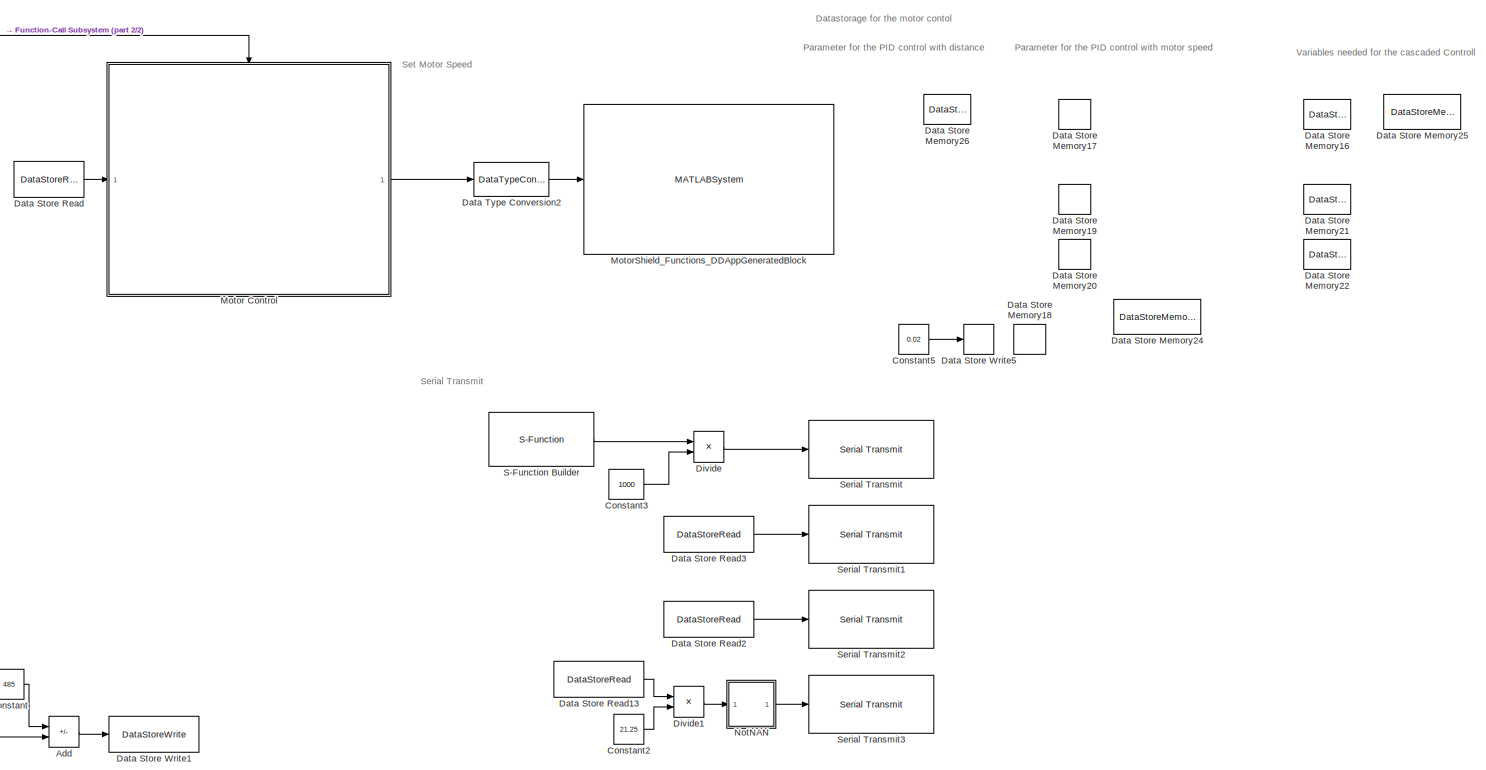
[diagram: root canvas - part 1/2, right side, full height]
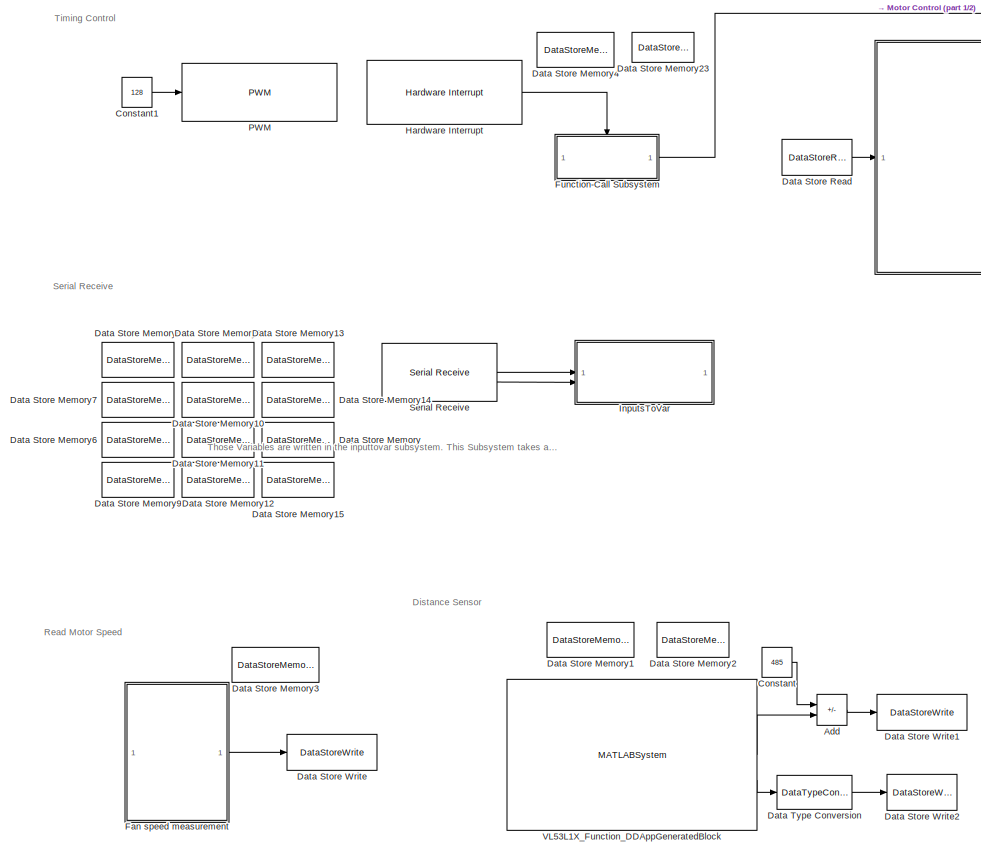
[diagram: root canvas - part 2/2, left side, full height]
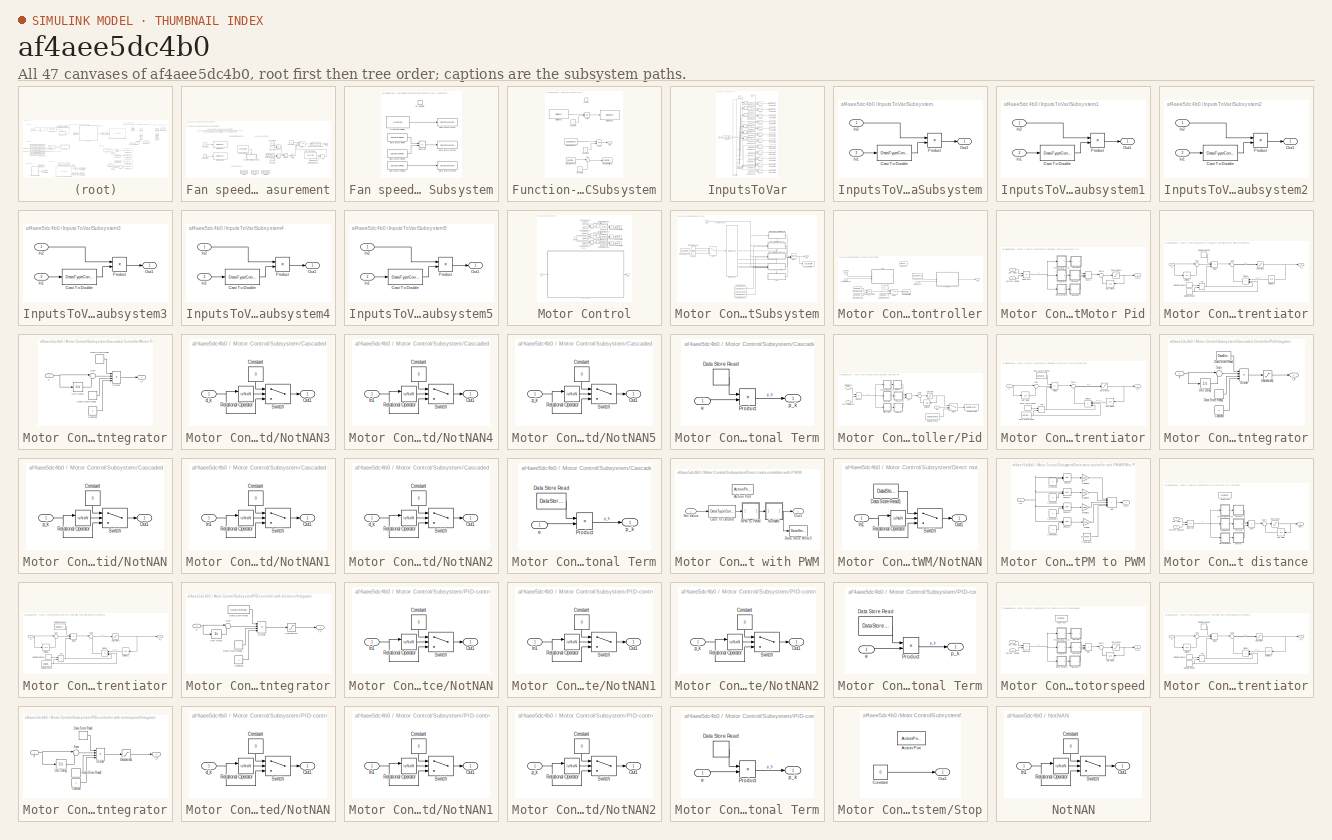
[diagram: thumbnail index - all 47 canvases of the model, root first then tree order]
MODEL slx_af4aee5dc4b0
KIND model
CONFIG AbsTol = auto
CONFIG EnableMultiTasking = on
CONFIG FixedStep = auto
CONFIG MaxStep = auto
CONFIG MinStep = auto
CONFIG RelTol = 1e-3
CONFIG SampleTimeConstraint = Unconstrained
CONFIG SolverName = FixedStepAuto
CONFIG StartTime = 0.0
CONFIG StopTime = inf
BLOCK [Sum] Add
  IconShape = rectangular
  Inputs = +-
BLOCK [Constant] Constant
  Value = 485
BLOCK [Constant] Constant1
  Value = 128
BLOCK [Constant] Constant2
  Value = 21.25
BLOCK [Constant] Constant3
  Value = 1000
BLOCK [Constant] Constant5
  Value = 0.02
BLOCK [DataStoreMemory] Data Store Memory
  DataStoreName = Serial_Input
  ShowAdditionalParam = off
  WriteAfterWriteMsg = warning
BLOCK [DataStoreMemory] Data Store Memory1
  DataStoreName = Distance
  ShowAdditionalParam = off
  WriteAfterWriteMsg = warning
BLOCK [DataStoreMemory] Data Store Memory10
  DataStoreName = Ti_ctl
  ShowAdditionalParam = off
  WriteAfterWriteMsg = warning
BLOCK [DataStoreMemory] Data Store Memory11
  DataStoreName = Td_ctl
  ShowAdditionalParam = off
  WriteAfterWriteMsg = warning
BLOCK [DataStoreMemory] Data Store Memory12
  DataStoreName = n_ctl
  NameLocation = top
  ShowAdditionalParam = off
  WriteAfterWriteMsg = warning
BLOCK [DataStoreMemory] Data Store Memory13
  DataStoreName = Loop_count
  ShowAdditionalParam = off
  WriteAfterWriteMsg = warning
BLOCK [DataStoreMemory] Data Store Memory14
  DataStoreName = Mode
  ShowAdditionalParam = off
  WriteAfterWriteMsg = warning
BLOCK [DataStoreMemory] Data Store Memory15
  DataStoreName = Start
  ShowAdditionalParam = off
  WriteAfterWriteMsg = warning
BLOCK [DataStoreMemory] Data Store Memory16
  DataStoreName = Ki_motor
  ShowAdditionalParam = off
  WriteAfterWriteMsg = warning
BLOCK [DataStoreMemory] Data Store Memory17
  DataStoreName = Ki_ctl
  ShowAdditionalParam = off
  WriteAfterWriteMsg = warning
BLOCK [DataStoreMemory] Data Store Memory18
  DataStoreName = T_s
  ShowAdditionalParam = off
  WriteAfterWriteMsg = warning
BLOCK [DataStoreMemory] Data Store Memory19
  DataStoreName = Kd_ctl
  ShowAdditionalParam = off
  WriteAfterWriteMsg = warning
BLOCK [DataStoreMemory] Data Store Memory2
  DataStoreName = Sensor_Error
  ShowAdditionalParam = off
  WriteAfterWriteMsg = warning
BLOCK [DataStoreMemory] Data Store Memory20
  DataStoreName = Tf_ctl
  ShowAdditionalParam = off
  WriteAfterWriteMsg = warning
BLOCK [DataStoreMemory] Data Store Memory21
  DataStoreName = Kd_motor
  ShowAdditionalParam = off
  WriteAfterWriteMsg = warning
BLOCK [DataStoreMemory] Data Store Memory22
  DataStoreName = Tf_motor
  ShowAdditionalParam = off
  WriteAfterWriteMsg = warning
BLOCK [DataStoreMemory] Data Store Memory23
  DataStoreName = LoopControl
  ShowAdditionalParam = off
  WriteAfterWriteMsg = warning
BLOCK [DataStoreMemory] Data Store Memory24
  DataStoreName = Voltage
  ShowAdditionalParam = off
  WriteAfterWriteMsg = warning
BLOCK [DataStoreMemory] Data Store Memory25
  DataStoreName = PreviousOutput
  ShowAdditionalParam = off
  WriteAfterWriteMsg = warning
BLOCK [DataStoreMemory] Data Store Memory26
  DataStoreName = PreviousSetValueDirect
  ShowAdditionalParam = off
  WriteAfterWriteMsg = warning
BLOCK [DataStoreMemory] Data Store Memory3
  DataStoreName = MotorSpeed
  ShowAdditionalParam = off
  WriteAfterWriteMsg = warning
BLOCK [DataStoreMemory] Data Store Memory4
  DataStoreName = ControlEnable
  ShowAdditionalParam = off
  WriteAfterWriteMsg = warning
BLOCK [DataStoreMemory] Data Store Memory5
  DataStoreName = Kp_motor
  ShowAdditionalParam = off
  WriteAfterWriteMsg = warning
BLOCK [DataStoreMemory] Data Store Memory6
  DataStoreName = Td_motor
  ShowAdditionalParam = off
  WriteAfterWriteMsg = warning
BLOCK [DataStoreMemory] Data Store Memory7
  DataStoreName = Ti_motor
  ShowAdditionalParam = off
  WriteAfterWriteMsg = warning
BLOCK [DataStoreMemory] Data Store Memory8
  DataStoreName = Kp_ctl
  ShowAdditionalParam = off
  WriteAfterWriteMsg = warning
BLOCK [DataStoreMemory] Data Store Memory9
  DataStoreName = n_motor
  ShowAdditionalParam = off
  WriteAfterWriteMsg = warning
BLOCK [DataStoreRead] Data Store Read
  DataStoreName = Serial_Input
  IndexOptions = Index vector (dialog)
  Indices = 1
  OutputSizes = 1
BLOCK [DataStoreRead] Data Store Read13
  DataStoreName = Voltage
  IndexOptions = Index vector (dialog)
  Indices = 1
  OutputSizes = 1
BLOCK [DataStoreRead] Data Store Read2
  DataStoreName = MotorSpeed
  IndexOptions = Index vector (dialog)
  Indices = 1
  OutputSizes = 1
BLOCK [DataStoreRead] Data Store Read3
  DataStoreName = Distance
  IndexOptions = Index vector (dialog)
  Indices = 1
  OutputSizes = 1
BLOCK [DataStoreWrite] Data Store Write
  DataStoreName = MotorSpeed
  IndexOptions = Index vector (dialog)
  Indices = 1
  OutputSizes = 1
BLOCK [DataStoreWrite] Data Store Write1
  DataStoreName = Distance
  IndexOptions = Index vector (dialog)
  Indices = 1
  OutputSizes = 1
BLOCK [DataStoreWrite] Data Store Write2
  DataStoreName = Sensor_Error
  IndexOptions = Index vector (dialog)
  Indices = 1
  OutputSizes = 1
BLOCK [DataStoreWrite] Data Store Write5
  DataStoreName = T_s
  IndexOptions = Index vector (dialog)
  Indices = 1
  OutputSizes = 1
BLOCK [DataTypeConversion] Data Type Conversion
  OutDataTypeStr = double
  RndMeth = Floor
  SaturateOnIntegerOverflow = off
BLOCK [DataTypeConversion] Data Type Conversion2
  OutDataTypeStr = uint8
  RndMeth = Floor
  SaturateOnIntegerOverflow = off
BLOCK [Product] Divide
  Inputs = */
BLOCK [Product] Divide1
  Inputs = */
BLOCK [SubSystem] Fan speed measurement
BLOCK [Sum] Fan speed measurement/Add
  IconShape = rectangular
  Inputs = +-
BLOCK [DataStoreMemory] Fan speed measurement/CTime
  DataStoreName = CurrentTime
  OutDataTypeStr = uint32
  ShowAdditionalParam = off
BLOCK [Constant] Fan speed measurement/Constant
  Value = 1000000
BLOCK [Constant] Fan speed measurement/Constant1
  Value = 2
BLOCK [Constant] Fan speed measurement/Constant2
  Value = 0
BLOCK [Constant] Fan speed measurement/Constant3
BLOCK [Constant] Fan speed measurement/Constant4
  Value = 60
BLOCK [Constant] Fan speed measurement/Constant5
  Value = 0
BLOCK [DataStoreRead] Fan speed measurement/Data Store Read
  DataStoreName = TimeDifference
  IndexOptions = Index vector (dialog)
  Indices = 1
  OutputSizes = 1
BLOCK [DataStoreRead] Fan speed measurement/Data Store Read1
  DataStoreName = CurrentTime
  IndexOptions = Index vector (dialog)
  Indices = 1
  OutputSizes = 1
BLOCK [DataTypeConversion] Fan speed measurement/Data Type Conversion
  OutDataTypeStr = double
  RndMeth = Floor
  SaturateOnIntegerOverflow = off
BLOCK [Reference] Fan speed measurement/Digital Output  REF=arduinolib/Digital Output
  SourceBlock = arduinolib/Digital Output
  SourceType = Arduino Digital Output
BLOCK [Reference] Fan speed measurement/Digital Output1  REF=arduinolib/Digital Output
  SourceBlock = arduinolib/Digital Output
  SourceType = Arduino Digital Output
BLOCK [Product] Fan speed measurement/Divide
  Inputs = */
BLOCK [Product] Fan speed measurement/Divide1
  Inputs = */
BLOCK [Product] Fan speed measurement/Divide2
  Inputs = */
BLOCK [Reference] Fan speed measurement/External Interrupt  REF=arduinolib/External Interrupt
  SourceBlock = arduinolib/External Interrupt
  SourceType = Arduino Interrupt Block
BLOCK [SubSystem] Fan speed measurement/Function-Call Subsystem
  TreatAsAtomicUnit = on
BLOCK [DataStoreRead] Fan speed measurement/Function-Call Subsystem/Data Store Read
  DataStoreName = CurrentTime
  IndexOptions = Index vector (dialog)
  Indices = 1
  OutputSizes = 1
BLOCK [DataStoreRead] Fan speed measurement/Function-Call Subsystem/Data Store Read1
  DataStoreName = PreviousTime
  IndexOptions = Index vector (dialog)
  Indices = 1
  OutputSizes = 1
BLOCK [DataStoreRead] Fan speed measurement/Function-Call Subsystem/Data Store Read2
  DataStoreName = CurrentTime
  IndexOptions = Index vector (dialog)
  Indices = 1
  OutputSizes = 1
BLOCK [DataStoreWrite] Fan speed measurement/Function-Call Subsystem/Data Store Write
  DataStoreName = CurrentTime
  IndexOptions = Index vector (dialog)
  Indices = 1
  OutputSizes = 1
  Priority = 1
BLOCK [DataStoreWrite] Fan speed measurement/Function-Call Subsystem/Data Store Write1
  DataStoreName = TimeDifference
  IndexOptions = Index vector (dialog)
  Indices = 1
  OutputSizes = 1
  Priority = 2
BLOCK [DataStoreWrite] Fan speed measurement/Function-Call Subsystem/Data Store Write2
  DataStoreName = PreviousTime
  IndexOptions = Index vector (dialog)
  Indices = 1
  OutputSizes = 1
  Priority = 3
BLOCK [S-Function] Fan speed measurement/Function-Call Subsystem/S-Function Builder
  CopyFcn = set_param(gcbh,'LinkStatus','none')
  EnableBusSupport = off
  FunctionName = Micros
  OpenFcn = sfunctionwizard(gcbh)
  SFcnIsStateOwnerBlock = off
  SFunctionDeploymentMode = off
  SFunctionModules = Micros_wrapper.c
BLOCK [Sum] Fan speed measurement/Function-Call Subsystem/Subtract
  IconShape = rectangular
  Inputs = +-
BLOCK [TriggerPort] Fan speed measurement/Function-Call Subsystem/isr_handler
  StatesWhenEnabling = held
  TriggerType = function-call
  VariantControl = Variant
BLOCK [Gain] Fan speed measurement/Gain
BLOCK [Outport] Fan speed measurement/Out1
BLOCK [DataStoreMemory] Fan speed measurement/PTime
  DataStoreName = PreviousTime
  OutDataTypeStr = uint32
  ShowAdditionalParam = off
BLOCK [S-Function] Fan speed measurement/S-Function Builder
  CopyFcn = set_param(gcbh,'LinkStatus','none')
  EnableBusSupport = off
  FunctionName = Micros
  OpenFcn = sfunctionwizard(gcbh)
  SFcnIsStateOwnerBlock = off
  SFunctionDeploymentMode = off
  SFunctionModules = Micros_wrapper.c
BLOCK [Switch] Fan speed measurement/Switch
  Criteria = u2 > Threshold
  InputSameDT = off
  SaturateOnIntegerOverflow = off
  Threshold = 50000
BLOCK [DataStoreMemory] Fan speed measurement/TimeDiff
  DataStoreName = TimeDifference
  OutDataTypeStr = uint32
  ShowAdditionalParam = off
BLOCK [SubSystem] Function-Call Subsystem
  TreatAsAtomicUnit = on
BLOCK [Constant] Function-Call Subsystem/Constant
  Commented = on
BLOCK [Constant] Function-Call Subsystem/Constant1
BLOCK [Constant] Function-Call Subsystem/Constant2
BLOCK [DataStoreRead] Function-Call Subsystem/Data Store Read1
  DataStoreName = LoopControl
  IndexOptions = Index vector (dialog)
  Indices = 1
  OutputSizes = 1
BLOCK [DataStoreRead] Function-Call Subsystem/Data Store Read4
  DataStoreName = ControlEnable
  IndexOptions = Index vector (dialog)
  Indices = 1
  OutputSizes = 1
BLOCK [DataStoreWrite] Function-Call Subsystem/Data Store Write10
  DataStoreName = LoopControl
  IndexOptions = Index vector (dialog)
  Indices = 1
  OutputSizes = 1
BLOCK [Reference] Function-Call Subsystem/Digital Input  REF=arduinolib/Digital Input
  Commented = on
  SourceBlock = arduinolib/Digital Input
  SourceType = Arduino Digital Input
BLOCK [Reference] Function-Call Subsystem/Digital Output  REF=arduinolib/Digital Output
  Commented = on
  SourceBlock = arduinolib/Digital Output
  SourceType = Arduino Digital Output
BLOCK [Outport] Function-Call Subsystem/Out1
BLOCK [Sum] Function-Call Subsystem/Sum
  Inputs = |++
BLOCK [Logic] Function-Call Subsystem/XOR
  AllPortsSameDT = off
  Commented = on
  IconShape = distinctive
  Operator = XOR
  OutDataTypeStr = boolean
BLOCK [Logic] Function-Call Subsystem/XOR1
  AllPortsSameDT = off
  IconShape = distinctive
  Operator = XOR
  OutDataTypeStr = boolean
BLOCK [TriggerPort] Function-Call Subsystem/function
  StatesWhenEnabling = held
  TriggerType = function-call
  VariantControl = (inherit)
BLOCK [Reference] Hardware Interrupt  REF=arduinoavrlib/Hardware Interrupt
  SourceBlock = arduinoavrlib/Hardware Interrupt
  SourceType = HardwareInterrupt
  UserDataPersistent = on
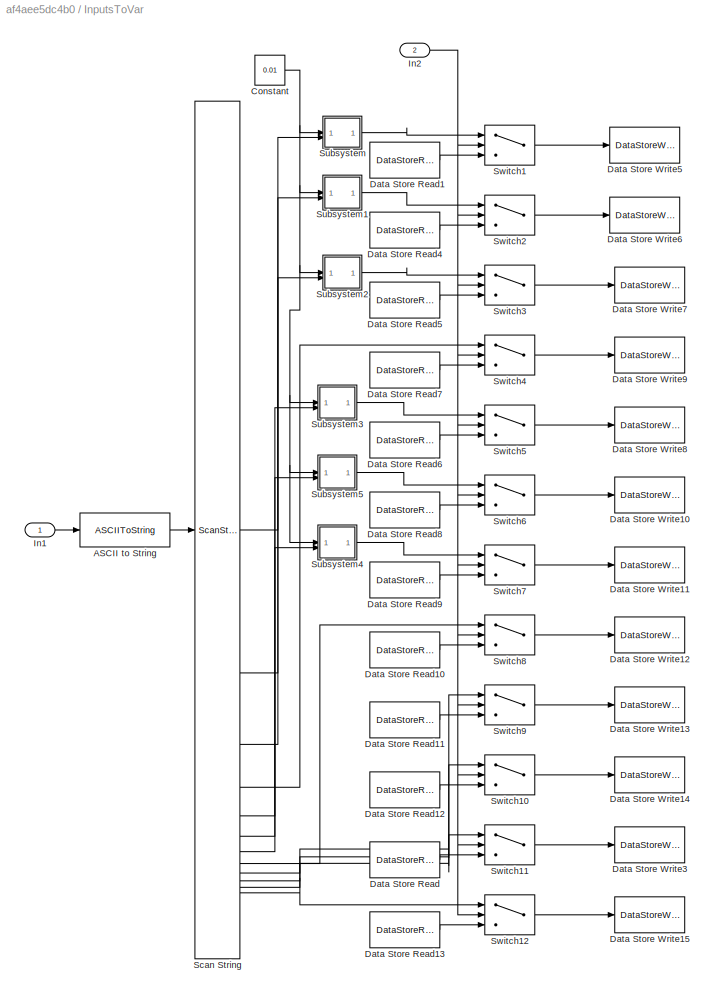
BLOCK [SubSystem] InputsToVar
BLOCK [ASCIIToString] InputsToVar/ASCII to String
BLOCK [Constant] InputsToVar/Constant
  Value = 0.01
BLOCK [DataStoreRead] InputsToVar/Data Store Read
  DataStoreName = Serial_Input
  IndexOptions = Index vector (dialog)
  Indices = 1
  OutputSizes = 1
BLOCK [DataStoreRead] InputsToVar/Data Store Read1
  DataStoreName = Kp_motor
  IndexOptions = Index vector (dialog)
  Indices = 1
  OutputSizes = 1
BLOCK [DataStoreRead] InputsToVar/Data Store Read10
  DataStoreName = n_ctl
  IndexOptions = Index vector (dialog)
  Indices = 1
  OutputSizes = 1
BLOCK [DataStoreRead] InputsToVar/Data Store Read11
  DataStoreName = Loop_count
  IndexOptions = Index vector (dialog)
  Indices = 1
  OutputSizes = 1
BLOCK [DataStoreRead] InputsToVar/Data Store Read12
  DataStoreName = Mode
  IndexOptions = Index vector (dialog)
  Indices = 1
  OutputSizes = 1
BLOCK [DataStoreRead] InputsToVar/Data Store Read13
  DataStoreName = Start
  IndexOptions = Index vector (dialog)
  Indices = 1
  OutputSizes = 1
BLOCK [DataStoreRead] InputsToVar/Data Store Read4
  DataStoreName = Td_motor
  IndexOptions = Index vector (dialog)
  Indices = 1
  OutputSizes = 1
BLOCK [DataStoreRead] InputsToVar/Data Store Read5
  DataStoreName = Ti_motor
  IndexOptions = Index vector (dialog)
  Indices = 1
  OutputSizes = 1
BLOCK [DataStoreRead] InputsToVar/Data Store Read6
  DataStoreName = Kp_ctl
  IndexOptions = Index vector (dialog)
  Indices = 1
  OutputSizes = 1
BLOCK [DataStoreRead] InputsToVar/Data Store Read7
  DataStoreName = n_motor
  IndexOptions = Index vector (dialog)
  Indices = 1
  OutputSizes = 1
BLOCK [DataStoreRead] InputsToVar/Data Store Read8
  DataStoreName = Ti_ctl
  IndexOptions = Index vector (dialog)
  Indices = 1
  OutputSizes = 1
BLOCK [DataStoreRead] InputsToVar/Data Store Read9
  DataStoreName = Td_ctl
  IndexOptions = Index vector (dialog)
  Indices = 1
  OutputSizes = 1
BLOCK [DataStoreWrite] InputsToVar/Data Store Write10
  DataStoreName = Ti_ctl
  IndexOptions = Index vector (dialog)
  Indices = 1
  OutputSizes = 1
BLOCK [DataStoreWrite] InputsToVar/Data Store Write11
  DataStoreName = Td_ctl
  IndexOptions = Index vector (dialog)
  Indices = 1
  OutputSizes = 1
BLOCK [DataStoreWrite] InputsToVar/Data Store Write12
  DataStoreName = n_ctl
  IndexOptions = Index vector (dialog)
  Indices = 1
  OutputSizes = 1
BLOCK [DataStoreWrite] InputsToVar/Data Store Write13
  DataStoreName = Loop_count
  IndexOptions = Index vector (dialog)
  Indices = 1
  OutputSizes = 1
BLOCK [DataStoreWrite] InputsToVar/Data Store Write14
  DataStoreName = Mode
  IndexOptions = Index vector (dialog)
  Indices = 1
  OutputSizes = 1
BLOCK [DataStoreWrite] InputsToVar/Data Store Write15
  DataStoreName = Start
  IndexOptions = Index vector (dialog)
  Indices = 1
  OutputSizes = 1
BLOCK [DataStoreWrite] InputsToVar/Data Store Write3
  DataStoreName = Serial_Input
  IndexOptions = Index vector (dialog)
  Indices = 1
  OutputSizes = 1
BLOCK [DataStoreWrite] InputsToVar/Data Store Write5
  DataStoreName = Kp_motor
  IndexOptions = Index vector (dialog)
  Indices = 1
  OutputSizes = 1
BLOCK [DataStoreWrite] InputsToVar/Data Store Write6
  DataStoreName = Td_motor
  IndexOptions = Index vector (dialog)
  Indices = 1
  OutputSizes = 1
BLOCK [DataStoreWrite] InputsToVar/Data Store Write7
  DataStoreName = Ti_motor
  IndexOptions = Index vector (dialog)
  Indices = 1
  OutputSizes = 1
BLOCK [DataStoreWrite] InputsToVar/Data Store Write8
  DataStoreName = Kp_ctl
  IndexOptions = Index vector (dialog)
  Indices = 1
  OutputSizes = 1
BLOCK [DataStoreWrite] InputsToVar/Data Store Write9
  DataStoreName = n_motor
  IndexOptions = Index vector (dialog)
  Indices = 1
  OutputSizes = 1
BLOCK [Inport] InputsToVar/In1
BLOCK [Inport] InputsToVar/In2
  Port = 2
BLOCK [ScanString] InputsToVar/Scan String
  Format = "%d %d %d %d %d %d %d %d %d %d %d %d"
BLOCK [SubSystem] InputsToVar/Subsystem
BLOCK [DataTypeConversion] InputsToVar/Subsystem/Cast To Double
  OutDataTypeStr = double
  RndMeth = Floor
  SaturateOnIntegerOverflow = off
BLOCK [Inport] InputsToVar/Subsystem/In1
  Port = 2
BLOCK [Inport] InputsToVar/Subsystem/In2
BLOCK [Outport] InputsToVar/Subsystem/Out1
BLOCK [Product] InputsToVar/Subsystem/Product
BLOCK [SubSystem] InputsToVar/Subsystem1
BLOCK [DataTypeConversion] InputsToVar/Subsystem1/Cast To Double
  OutDataTypeStr = double
  RndMeth = Floor
  SaturateOnIntegerOverflow = off
BLOCK [Inport] InputsToVar/Subsystem1/In1
  Port = 2
BLOCK [Inport] InputsToVar/Subsystem1/In2
BLOCK [Outport] InputsToVar/Subsystem1/Out1
BLOCK [Product] InputsToVar/Subsystem1/Product
BLOCK [SubSystem] InputsToVar/Subsystem2
BLOCK [DataTypeConversion] InputsToVar/Subsystem2/Cast To Double
  OutDataTypeStr = double
  RndMeth = Floor
  SaturateOnIntegerOverflow = off
BLOCK [Inport] InputsToVar/Subsystem2/In1
  Port = 2
BLOCK [Inport] InputsToVar/Subsystem2/In2
BLOCK [Outport] InputsToVar/Subsystem2/Out1
BLOCK [Product] InputsToVar/Subsystem2/Product
BLOCK [SubSystem] InputsToVar/Subsystem3
BLOCK [DataTypeConversion] InputsToVar/Subsystem3/Cast To Double
  OutDataTypeStr = double
  RndMeth = Floor
  SaturateOnIntegerOverflow = off
BLOCK [Inport] InputsToVar/Subsystem3/In1
  Port = 2
BLOCK [Inport] InputsToVar/Subsystem3/In2
BLOCK [Outport] InputsToVar/Subsystem3/Out1
BLOCK [Product] InputsToVar/Subsystem3/Product
BLOCK [SubSystem] InputsToVar/Subsystem4
BLOCK [DataTypeConversion] InputsToVar/Subsystem4/Cast To Double
  OutDataTypeStr = double
  RndMeth = Floor
  SaturateOnIntegerOverflow = off
BLOCK [Inport] InputsToVar/Subsystem4/In1
  Port = 2
BLOCK [Inport] InputsToVar/Subsystem4/In2
BLOCK [Outport] InputsToVar/Subsystem4/Out1
BLOCK [Product] InputsToVar/Subsystem4/Product
BLOCK [SubSystem] InputsToVar/Subsystem5
BLOCK [DataTypeConversion] InputsToVar/Subsystem5/Cast To Double
  OutDataTypeStr = double
  RndMeth = Floor
  SaturateOnIntegerOverflow = off
BLOCK [Inport] InputsToVar/Subsystem5/In1
  Port = 2
BLOCK [Inport] InputsToVar/Subsystem5/In2
BLOCK [Outport] InputsToVar/Subsystem5/Out1
BLOCK [Product] InputsToVar/Subsystem5/Product
BLOCK [Switch] InputsToVar/Switch1
  Criteria = u2 > Threshold
  InputSameDT = off
  SaturateOnIntegerOverflow = off
BLOCK [Switch] InputsToVar/Switch10
  Criteria = u2 > Threshold
  InputSameDT = off
  SaturateOnIntegerOverflow = off
BLOCK [Switch] InputsToVar/Switch11
  Criteria = u2 > Threshold
  InputSameDT = off
  SaturateOnIntegerOverflow = off
BLOCK [Switch] InputsToVar/Switch12
  Criteria = u2 > Threshold
  InputSameDT = off
  SaturateOnIntegerOverflow = off
BLOCK [Switch] InputsToVar/Switch2
  Criteria = u2 > Threshold
  InputSameDT = off
  SaturateOnIntegerOverflow = off
BLOCK [Switch] InputsToVar/Switch3
  Criteria = u2 > Threshold
  InputSameDT = off
  SaturateOnIntegerOverflow = off
BLOCK [Switch] InputsToVar/Switch4
  Criteria = u2 > Threshold
  InputSameDT = off
  SaturateOnIntegerOverflow = off
BLOCK [Switch] InputsToVar/Switch5
  Criteria = u2 > Threshold
  InputSameDT = off
  SaturateOnIntegerOverflow = off
BLOCK [Switch] InputsToVar/Switch6
  Criteria = u2 > Threshold
  InputSameDT = off
  SaturateOnIntegerOverflow = off
BLOCK [Switch] InputsToVar/Switch7
  Criteria = u2 > Threshold
  InputSameDT = off
  SaturateOnIntegerOverflow = off
BLOCK [Switch] InputsToVar/Switch8
  Criteria = u2 > Threshold
  InputSameDT = off
  SaturateOnIntegerOverflow = off
BLOCK [Switch] InputsToVar/Switch9
  Criteria = u2 > Threshold
  InputSameDT = off
  SaturateOnIntegerOverflow = off
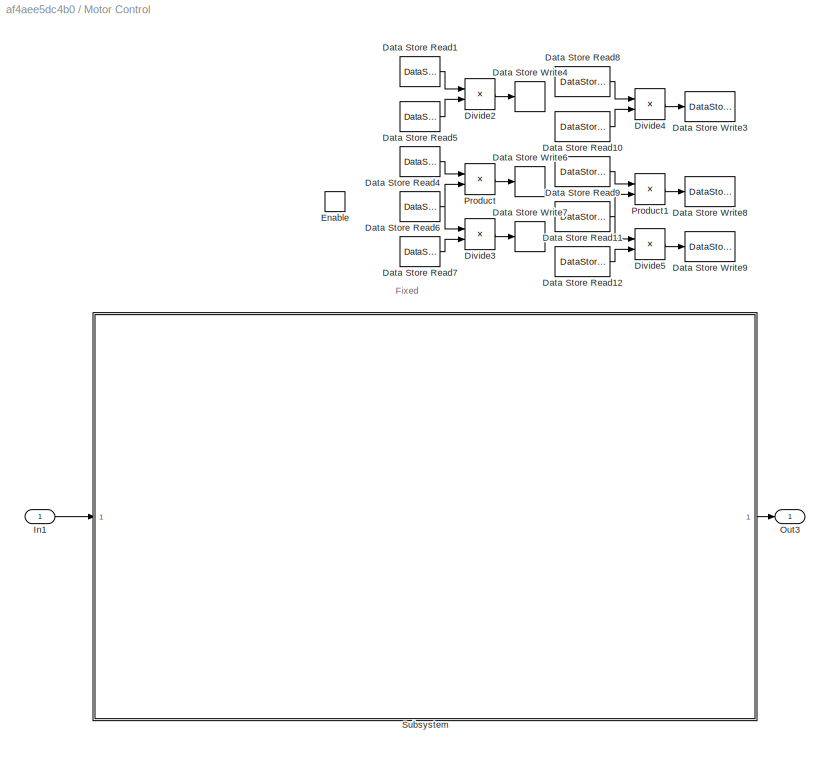
BLOCK [SubSystem] Motor Control
BLOCK [DataStoreRead] Motor Control/Data Store Read1
  DataStoreName = Kp_ctl
  IndexOptions = Index vector (dialog)
  Indices = 1
  OutputSizes = 1
BLOCK [DataStoreRead] Motor Control/Data Store Read10
  DataStoreName = Ti_motor
  IndexOptions = Index vector (dialog)
  Indices = 1
  OutputSizes = 1
BLOCK [DataStoreRead] Motor Control/Data Store Read11
  DataStoreName = Td_motor
  IndexOptions = Index vector (dialog)
  Indices = 1
  OutputSizes = 1
BLOCK [DataStoreRead] Motor Control/Data Store Read12
  DataStoreName = n_motor
  IndexOptions = Index vector (dialog)
  Indices = 1
  OutputSizes = 1
BLOCK [DataStoreRead] Motor Control/Data Store Read4
  DataStoreName = Kp_ctl
  IndexOptions = Index vector (dialog)
  Indices = 1
  OutputSizes = 1
BLOCK [DataStoreRead] Motor Control/Data Store Read5
  DataStoreName = Ti_ctl
  IndexOptions = Index vector (dialog)
  Indices = 1
  OutputSizes = 1
BLOCK [DataStoreRead] Motor Control/Data Store Read6
  DataStoreName = Td_ctl
  IndexOptions = Index vector (dialog)
  Indices = 1
  OutputSizes = 1
BLOCK [DataStoreRead] Motor Control/Data Store Read7
  DataStoreName = n_ctl
  IndexOptions = Index vector (dialog)
  Indices = 1
  OutputSizes = 1
BLOCK [DataStoreRead] Motor Control/Data Store Read8
  DataStoreName = Kp_motor
  IndexOptions = Index vector (dialog)
  Indices = 1
  OutputSizes = 1
BLOCK [DataStoreRead] Motor Control/Data Store Read9
  DataStoreName = Kp_motor
  IndexOptions = Index vector (dialog)
  Indices = 1
  OutputSizes = 1
BLOCK [DataStoreWrite] Motor Control/Data Store Write3
  DataStoreName = Ki_motor
  IndexOptions = Index vector (dialog)
  Indices = 1
  OutputSizes = 1
BLOCK [DataStoreWrite] Motor Control/Data Store Write4
  DataStoreName = Ki_ctl
  IndexOptions = Index vector (dialog)
  Indices = 1
  OutputSizes = 1
BLOCK [DataStoreWrite] Motor Control/Data Store Write6
  DataStoreName = Kd_ctl
  IndexOptions = Index vector (dialog)
  Indices = 1
  OutputSizes = 1
BLOCK [DataStoreWrite] Motor Control/Data Store Write7
  DataStoreName = Tf_ctl
  IndexOptions = Index vector (dialog)
  Indices = 1
  OutputSizes = 1
BLOCK [DataStoreWrite] Motor Control/Data Store Write8
  DataStoreName = Kd_motor
  IndexOptions = Index vector (dialog)
  Indices = 1
  OutputSizes = 1
BLOCK [DataStoreWrite] Motor Control/Data Store Write9
  DataStoreName = Tf_motor
  IndexOptions = Index vector (dialog)
  Indices = 1
  OutputSizes = 1
BLOCK [Product] Motor Control/Divide2
  Inputs = */
BLOCK [Product] Motor Control/Divide3
  Inputs = */
BLOCK [Product] Motor Control/Divide4
  Inputs = */
BLOCK [Product] Motor Control/Divide5
  Inputs = */
BLOCK [EnablePort] Motor Control/Enable
BLOCK [Inport] Motor Control/In1
BLOCK [Outport] Motor Control/Out3
BLOCK [Product] Motor Control/Product
BLOCK [Product] Motor Control/Product1
BLOCK [SubSystem] Motor Control/Subsystem
BLOCK [SubSystem] Motor Control/Subsystem/Cascaded Controller
  TreatAsAtomicUnit = on
BLOCK [ActionPort] Motor Control/Subsystem/Cascaded Controller/Action Port
  ActionPortLabel = case [ 4 ]:
BLOCK [Constant] Motor Control/Subsystem/Cascaded Controller/Constant1
  Value = 0
BLOCK [Inport] Motor Control/Subsystem/Cascaded Controller/Current Distance
  Port = 3
BLOCK [DataStoreRead] Motor Control/Subsystem/Cascaded Controller/Data Store Read
  DataStoreName = PreviousOutput
  IndexOptions = Index vector (dialog)
  Indices = 1
  OutputSizes = 1
BLOCK [DataStoreRead] Motor Control/Subsystem/Cascaded Controller/Data Store Read1
  DataStoreName = LoopControl
  IndexOptions = Index vector (dialog)
  Indices = 1
  OutputSizes = 1
BLOCK [DataStoreRead] Motor Control/Subsystem/Cascaded Controller/Data Store Read2
  DataStoreName = Loop_count
  IndexOptions = Index vector (dialog)
  Indices = 1
  OutputSizes = 1
BLOCK [DataStoreRead] Motor Control/Subsystem/Cascaded Controller/Data Store Read3
  DataStoreName = LoopControl
  IndexOptions = Index vector (dialog)
  Indices = 1
  OutputSizes = 1
BLOCK [DataStoreWrite] Motor Control/Subsystem/Cascaded Controller/Data Store Write1
  DataStoreName = LoopControl
  IndexOptions = Index vector (dialog)
  Indices = 1
  OutputSizes = 1
BLOCK [RelationalOperator] Motor Control/Subsystem/Cascaded Controller/GreaterThanOrEqual
  InputSameDT = off
  OutDataTypeStr = boolean
  RndMeth = Simplest
BLOCK [SubSystem] Motor Control/Subsystem/Cascaded Controller/Motor Pid
BLOCK [Inport] Motor Control/Subsystem/Cascaded Controller/Motor Pid/Current Speed
  Port = 2
BLOCK [SubSystem] Motor Control/Subsystem/Cascaded Controller/Motor Pid/Differentiator
BLOCK [Sum] Motor Control/Subsystem/Cascaded Controller/Motor Pid/Differentiator/Add
  IconShape = rectangular
BLOCK [DataStoreRead] Motor Control/Subsystem/Cascaded Controller/Motor Pid/Differentiator/Data Store Read
  DataStoreName = Tf_motor
  IndexOptions = Index vector (dialog)
  Indices = 1
  OutputSizes = 1
BLOCK [DataStoreRead] Motor Control/Subsystem/Cascaded Controller/Motor Pid/Differentiator/Data Store Read1
  DataStoreName = T_s
  IndexOptions = Index vector (dialog)
  Indices = 1
  OutputSizes = 1
BLOCK [DataStoreRead] Motor Control/Subsystem/Cascaded Controller/Motor Pid/Differentiator/Data Store Read2
  DataStoreName = Kd_motor
  IndexOptions = Index vector (dialog)
  Indices = 1
  OutputSizes = 1
BLOCK [Product] Motor Control/Subsystem/Cascaded Controller/Motor Pid/Differentiator/Divide
  Inputs = **/
BLOCK [Product] Motor Control/Subsystem/Cascaded Controller/Motor Pid/Differentiator/Divide1
  Inputs = **/
BLOCK [Saturate] Motor Control/Subsystem/Cascaded Controller/Motor Pid/Differentiator/Saturation1
  LowerLimit = -255
  UpperLimit = 255
BLOCK [Sum] Motor Control/Subsystem/Cascaded Controller/Motor Pid/Differentiator/Sum
  Inputs = |+-
BLOCK [Sum] Motor Control/Subsystem/Cascaded Controller/Motor Pid/Differentiator/Sum1
  Inputs = |++
BLOCK [UnitDelay] Motor Control/Subsystem/Cascaded Controller/Motor Pid/Differentiator/Unit Delay
  HasFrameUpgradeWarning = on
  SampleTime = 0.02
BLOCK [UnitDelay] Motor Control/Subsystem/Cascaded Controller/Motor Pid/Differentiator/Unit Delay1
  HasFrameUpgradeWarning = on
  NameLocation = top
  SampleTime = 0.02
BLOCK [Outport] Motor Control/Subsystem/Cascaded Controller/Motor Pid/Differentiator/d_k
BLOCK [Inport] Motor Control/Subsystem/Cascaded Controller/Motor Pid/Differentiator/e
BLOCK [SubSystem] Motor Control/Subsystem/Cascaded Controller/Motor Pid/Integrator
BLOCK [Constant] Motor Control/Subsystem/Cascaded Controller/Motor Pid/Integrator/Constant
  Value = 2
BLOCK [DataStoreRead] Motor Control/Subsystem/Cascaded Controller/Motor Pid/Integrator/Data Store Read
  DataStoreName = Ki_motor
  IndexOptions = Index vector (dialog)
  Indices = 1
  OutputSizes = 1
BLOCK [DataStoreRead] Motor Control/Subsystem/Cascaded Controller/Motor Pid/Integrator/Data Store Read1
  DataStoreName = T_s
  IndexOptions = Index vector (dialog)
  Indices = 1
  OutputSizes = 1
BLOCK [Product] Motor Control/Subsystem/Cascaded Controller/Motor Pid/Integrator/Divide
  Inputs = ***/
BLOCK [Sum] Motor Control/Subsystem/Cascaded Controller/Motor Pid/Integrator/Sum
  Inputs = |++
BLOCK [UnitDelay] Motor Control/Subsystem/Cascaded Controller/Motor Pid/Integrator/Unit Delay
  HasFrameUpgradeWarning = on
  SampleTime = 0.02
BLOCK [Inport] Motor Control/Subsystem/Cascaded Controller/Motor Pid/Integrator/e
BLOCK [Outport] Motor Control/Subsystem/Cascaded Controller/Motor Pid/Integrator/i_k
BLOCK [SubSystem] Motor Control/Subsystem/Cascaded Controller/Motor Pid/NotNAN3
BLOCK [Constant] Motor Control/Subsystem/Cascaded Controller/Motor Pid/NotNAN3/Constant
  NameLocation = left
  Value = 0
BLOCK [Outport] Motor Control/Subsystem/Cascaded Controller/Motor Pid/NotNAN3/Out1
BLOCK [RelationalOperator] Motor Control/Subsystem/Cascaded Controller/Motor Pid/NotNAN3/Relational Operator
  InputSameDT = off
  Operator = isNaN
  OutDataTypeStr = boolean
  RndMeth = Simplest
BLOCK [Switch] Motor Control/Subsystem/Cascaded Controller/Motor Pid/NotNAN3/Switch
  Criteria = u2 > Threshold
  InputSameDT = off
  SaturateOnIntegerOverflow = off
BLOCK [Inport] Motor Control/Subsystem/Cascaded Controller/Motor Pid/NotNAN3/d_k
BLOCK [SubSystem] Motor Control/Subsystem/Cascaded Controller/Motor Pid/NotNAN4
BLOCK [Constant] Motor Control/Subsystem/Cascaded Controller/Motor Pid/NotNAN4/Constant
  NameLocation = left
  Value = 0
BLOCK [Inport] Motor Control/Subsystem/Cascaded Controller/Motor Pid/NotNAN4/In1
BLOCK [Outport] Motor Control/Subsystem/Cascaded Controller/Motor Pid/NotNAN4/Out1
BLOCK [RelationalOperator] Motor Control/Subsystem/Cascaded Controller/Motor Pid/NotNAN4/Relational Operator
  InputSameDT = off
  Operator = isNaN
  OutDataTypeStr = boolean
  RndMeth = Simplest
BLOCK [Switch] Motor Control/Subsystem/Cascaded Controller/Motor Pid/NotNAN4/Switch
  Criteria = u2 > Threshold
  InputSameDT = off
  SaturateOnIntegerOverflow = off
BLOCK [SubSystem] Motor Control/Subsystem/Cascaded Controller/Motor Pid/NotNAN5
BLOCK [Constant] Motor Control/Subsystem/Cascaded Controller/Motor Pid/NotNAN5/Constant
  NameLocation = left
  Value = 0
BLOCK [Outport] Motor Control/Subsystem/Cascaded Controller/Motor Pid/NotNAN5/Out1
BLOCK [RelationalOperator] Motor Control/Subsystem/Cascaded Controller/Motor Pid/NotNAN5/Relational Operator
  InputSameDT = off
  Operator = isNaN
  OutDataTypeStr = boolean
  RndMeth = Simplest
BLOCK [Switch] Motor Control/Subsystem/Cascaded Controller/Motor Pid/NotNAN5/Switch
  Criteria = u2 > Threshold
  InputSameDT = off
  SaturateOnIntegerOverflow = off
BLOCK [Inport] Motor Control/Subsystem/Cascaded Controller/Motor Pid/NotNAN5/p_k
BLOCK [Outport] Motor Control/Subsystem/Cascaded Controller/Motor Pid/Out2
BLOCK [SubSystem] Motor Control/Subsystem/Cascaded Controller/Motor Pid/Proportional Term
BLOCK [DataStoreRead] Motor Control/Subsystem/Cascaded Controller/Motor Pid/Proportional Term/Data Store Read
  DataStoreName = Kp_motor
  IndexOptions = Index vector (dialog)
  Indices = 1
  OutputSizes = 1
BLOCK [Product] Motor Control/Subsystem/Cascaded Controller/Motor Pid/Proportional Term/Product
BLOCK [Inport] Motor Control/Subsystem/Cascaded Controller/Motor Pid/Proportional Term/e
BLOCK [Outport] Motor Control/Subsystem/Cascaded Controller/Motor Pid/Proportional Term/p_k
BLOCK [Saturate] Motor Control/Subsystem/Cascaded Controller/Motor Pid/Saturation1
  LowerLimit = 0
  UpperLimit = 255
BLOCK [Inport] Motor Control/Subsystem/Cascaded Controller/Motor Pid/Set value
BLOCK [Sum] Motor Control/Subsystem/Cascaded Controller/Motor Pid/Subtract1
  IconShape = rectangular
  Inputs = +-
BLOCK [Sum] Motor Control/Subsystem/Cascaded Controller/Motor Pid/Sum2
  IconShape = rectangular
  Inputs = +++
BLOCK [Sum] Motor Control/Subsystem/Cascaded Controller/Motor Pid/Sum3
  Inputs = |++
BLOCK [UnitDelay] Motor Control/Subsystem/Cascaded Controller/Motor Pid/Unit Delay1
  HasFrameUpgradeWarning = on
  SampleTime = 0.02
BLOCK [Inport] Motor Control/Subsystem/Cascaded Controller/Motor Speed
  Port = 2
BLOCK [Outport] Motor Control/Subsystem/Cascaded Controller/Out1
BLOCK [SubSystem] Motor Control/Subsystem/Cascaded Controller/Pid
  PortSchema = {"entries":[{"content":{"sides":[{"content":{"connectorIds":["In1","In2"]},"type":"ConnectorPlacement.EquallySpacedRectSide","uuid":"6ad93547-b11d-4498-bf86-2badffcf62b4"},{"content":{"side":"RIGHT"},"type":"ConnectorPlacement.EquallySpacedRectSide","uuid":"b91d1434-0ca6-4c9b-8aeb-b62dfb2b5798"},{"content":{"side":"TOP"},"type":"ConnectorPlacement.EquallySpacedRectSide","uuid":"db87fbcb-9053-460a-...<+353ch>
BLOCK [Inport] Motor Control/Subsystem/Cascaded Controller/Pid/Current Distance
  Port = 2
BLOCK [DataStoreRead] Motor Control/Subsystem/Cascaded Controller/Pid/Data Store Read
  DataStoreName = PreviousOutput
  IndexOptions = Index vector (dialog)
  Indices = 1
  OutputSizes = 1
BLOCK [DataStoreWrite] Motor Control/Subsystem/Cascaded Controller/Pid/Data Store Write
  DataStoreName = PreviousOutput
  IndexOptions = Index vector (dialog)
  Indices = 1
  OutputSizes = 1
BLOCK [SubSystem] Motor Control/Subsystem/Cascaded Controller/Pid/Differentiator
BLOCK [Sum] Motor Control/Subsystem/Cascaded Controller/Pid/Differentiator/Add
  IconShape = rectangular
BLOCK [DataStoreRead] Motor Control/Subsystem/Cascaded Controller/Pid/Differentiator/Data Store Read
  DataStoreName = Tf_ctl
  IndexOptions = Index vector (dialog)
  Indices = 1
  OutputSizes = 1
BLOCK [DataStoreRead] Motor Control/Subsystem/Cascaded Controller/Pid/Differentiator/Data Store Read1
  DataStoreName = T_s
  IndexOptions = Index vector (dialog)
  Indices = 1
  OutputSizes = 1
BLOCK [DataStoreRead] Motor Control/Subsystem/Cascaded Controller/Pid/Differentiator/Data Store Read2
  DataStoreName = Kd_ctl
  IndexOptions = Index vector (dialog)
  Indices = 1
  OutputSizes = 1
BLOCK [Product] Motor Control/Subsystem/Cascaded Controller/Pid/Differentiator/Divide
  Inputs = **/
BLOCK [Product] Motor Control/Subsystem/Cascaded Controller/Pid/Differentiator/Divide1
  Inputs = **/
BLOCK [Saturate] Motor Control/Subsystem/Cascaded Controller/Pid/Differentiator/Saturation1
  LowerLimit = -3200
  UpperLimit = 3200
BLOCK [Sum] Motor Control/Subsystem/Cascaded Controller/Pid/Differentiator/Sum
  Inputs = |+-
BLOCK [Sum] Motor Control/Subsystem/Cascaded Controller/Pid/Differentiator/Sum1
  Inputs = |++
BLOCK [UnitDelay] Motor Control/Subsystem/Cascaded Controller/Pid/Differentiator/Unit Delay
  HasFrameUpgradeWarning = on
  SampleTime = 0.02
BLOCK [UnitDelay] Motor Control/Subsystem/Cascaded Controller/Pid/Differentiator/Unit Delay1
  HasFrameUpgradeWarning = on
  NameLocation = top
  SampleTime = 0.02
BLOCK [Outport] Motor Control/Subsystem/Cascaded Controller/Pid/Differentiator/d_k
BLOCK [Inport] Motor Control/Subsystem/Cascaded Controller/Pid/Differentiator/e
BLOCK [Inport] Motor Control/Subsystem/Cascaded Controller/Pid/In3
  Port = 3
BLOCK [SubSystem] Motor Control/Subsystem/Cascaded Controller/Pid/Integrator
BLOCK [Constant] Motor Control/Subsystem/Cascaded Controller/Pid/Integrator/Constant
  Value = 2
BLOCK [DataStoreRead] Motor Control/Subsystem/Cascaded Controller/Pid/Integrator/Data Store Read
  DataStoreName = Ki_ctl
  IndexOptions = Index vector (dialog)
  Indices = 1
  OutputSizes = 1
BLOCK [DataStoreRead] Motor Control/Subsystem/Cascaded Controller/Pid/Integrator/Data Store Read1
  DataStoreName = T_s
  IndexOptions = Index vector (dialog)
  Indices = 1
  OutputSizes = 1
BLOCK [Product] Motor Control/Subsystem/Cascaded Controller/Pid/Integrator/Divide
  Inputs = ***/
BLOCK [Saturate] Motor Control/Subsystem/Cascaded Controller/Pid/Integrator/Saturation1
  LowerLimit = -3200
  UpperLimit = 3200
BLOCK [Sum] Motor Control/Subsystem/Cascaded Controller/Pid/Integrator/Sum
  Inputs = |++
BLOCK [UnitDelay] Motor Control/Subsystem/Cascaded Controller/Pid/Integrator/Unit Delay
  HasFrameUpgradeWarning = on
  SampleTime = 0.02
BLOCK [Inport] Motor Control/Subsystem/Cascaded Controller/Pid/Integrator/e
BLOCK [Outport] Motor Control/Subsystem/Cascaded Controller/Pid/Integrator/i_k
BLOCK [SubSystem] Motor Control/Subsystem/Cascaded Controller/Pid/NotNAN
BLOCK [Constant] Motor Control/Subsystem/Cascaded Controller/Pid/NotNAN/Constant
  NameLocation = left
  Value = 0
BLOCK [Outport] Motor Control/Subsystem/Cascaded Controller/Pid/NotNAN/Out1
BLOCK [RelationalOperator] Motor Control/Subsystem/Cascaded Controller/Pid/NotNAN/Relational Operator
  InputSameDT = off
  Operator = isNaN
  OutDataTypeStr = boolean
  RndMeth = Simplest
BLOCK [Switch] Motor Control/Subsystem/Cascaded Controller/Pid/NotNAN/Switch
  Criteria = u2 > Threshold
  InputSameDT = off
  SaturateOnIntegerOverflow = off
BLOCK [Inport] Motor Control/Subsystem/Cascaded Controller/Pid/NotNAN/p_k
BLOCK [SubSystem] Motor Control/Subsystem/Cascaded Controller/Pid/NotNAN1
BLOCK [Constant] Motor Control/Subsystem/Cascaded Controller/Pid/NotNAN1/Constant
  NameLocation = left
  Value = 0
BLOCK [Inport] Motor Control/Subsystem/Cascaded Controller/Pid/NotNAN1/In1
BLOCK [Outport] Motor Control/Subsystem/Cascaded Controller/Pid/NotNAN1/Out1
BLOCK [RelationalOperator] Motor Control/Subsystem/Cascaded Controller/Pid/NotNAN1/Relational Operator
  InputSameDT = off
  Operator = isNaN
  OutDataTypeStr = boolean
  RndMeth = Simplest
BLOCK [Switch] Motor Control/Subsystem/Cascaded Controller/Pid/NotNAN1/Switch
  Criteria = u2 > Threshold
  InputSameDT = off
  SaturateOnIntegerOverflow = off
BLOCK [SubSystem] Motor Control/Subsystem/Cascaded Controller/Pid/NotNAN2
BLOCK [Constant] Motor Control/Subsystem/Cascaded Controller/Pid/NotNAN2/Constant
  NameLocation = left
  Value = 0
BLOCK [Outport] Motor Control/Subsystem/Cascaded Controller/Pid/NotNAN2/Out1
BLOCK [RelationalOperator] Motor Control/Subsystem/Cascaded Controller/Pid/NotNAN2/Relational Operator
  InputSameDT = off
  Operator = isNaN
  OutDataTypeStr = boolean
  RndMeth = Simplest
BLOCK [Switch] Motor Control/Subsystem/Cascaded Controller/Pid/NotNAN2/Switch
  Criteria = u2 > Threshold
  InputSameDT = off
  SaturateOnIntegerOverflow = off
BLOCK [Inport] Motor Control/Subsystem/Cascaded Controller/Pid/NotNAN2/d_k
BLOCK [SubSystem] Motor Control/Subsystem/Cascaded Controller/Pid/Proportional Term
BLOCK [DataStoreRead] Motor Control/Subsystem/Cascaded Controller/Pid/Proportional Term/Data Store Read
  DataStoreName = Kp_ctl
  IndexOptions = Index vector (dialog)
  Indices = 1
  OutputSizes = 1
BLOCK [Product] Motor Control/Subsystem/Cascaded Controller/Pid/Proportional Term/Product
BLOCK [Inport] Motor Control/Subsystem/Cascaded Controller/Pid/Proportional Term/e
BLOCK [Outport] Motor Control/Subsystem/Cascaded Controller/Pid/Proportional Term/p_k
BLOCK [Saturate] Motor Control/Subsystem/Cascaded Controller/Pid/Saturation
  LowerLimit = 0
  UpperLimit = 3100
BLOCK [Inport] Motor Control/Subsystem/Cascaded Controller/Pid/Set Distance
BLOCK [Sum] Motor Control/Subsystem/Cascaded Controller/Pid/Subtract
  IconShape = rectangular
  Inputs = +-
BLOCK [Sum] Motor Control/Subsystem/Cascaded Controller/Pid/Sum
  IconShape = rectangular
  Inputs = +++
BLOCK [Sum] Motor Control/Subsystem/Cascaded Controller/Pid/Sum1
  Inputs = |++
BLOCK [Switch] Motor Control/Subsystem/Cascaded Controller/Pid/Switch
  Criteria = u2 > Threshold
  InputSameDT = off
  SaturateOnIntegerOverflow = off
BLOCK [UnitDelay] Motor Control/Subsystem/Cascaded Controller/Pid/Unit Delay
  HasFrameUpgradeWarning = on
  SampleTime = 0.02
BLOCK [Inport] Motor Control/Subsystem/Cascaded Controller/Set Value
BLOCK [Switch] Motor Control/Subsystem/Cascaded Controller/Switch
  Criteria = u2 > Threshold
  InputSameDT = off
  SaturateOnIntegerOverflow = off
BLOCK [Constant] Motor Control/Subsystem/Constant
  Value = 0
BLOCK [DataStoreRead] Motor Control/Subsystem/Data Store Read
  DataStoreName = Distance
  IndexOptions = Index vector (dialog)
  Indices = 1
  OutputSizes = 1
BLOCK [DataStoreRead] Motor Control/Subsystem/Data Store Read1
  DataStoreName = Mode
  IndexOptions = Index vector (dialog)
  Indices = 1
  OutputSizes = 1
BLOCK [DataStoreRead] Motor Control/Subsystem/Data Store Read13
  DataStoreName = Start
  IndexOptions = Index vector (dialog)
  Indices = 1
  OutputSizes = 1
BLOCK [DataStoreRead] Motor Control/Subsystem/Data Store Read3
  DataStoreName = MotorSpeed
  IndexOptions = Index vector (dialog)
  Indices = 1
  OutputSizes = 1
BLOCK [DataStoreWrite] Motor Control/Subsystem/Data Store Write10
  DataStoreName = Voltage
  IndexOptions = Index vector (dialog)
  Indices = 1
  OutputSizes = 1
BLOCK [SubSystem] Motor Control/Subsystem/Direct motor-controller with PWM
  TreatAsAtomicUnit = on
BLOCK [ActionPort] Motor Control/Subsystem/Direct motor-controller with PWM/Action Port
  ActionPortLabel = case [ 1 ]:
BLOCK [DataTypeConversion] Motor Control/Subsystem/Direct motor-controller with PWM/Cast To Double
  OutDataTypeStr = double
  RndMeth = Floor
  SaturateOnIntegerOverflow = off
BLOCK [DataStoreWrite] Motor Control/Subsystem/Direct motor-controller with PWM/Data Store Write3
  DataStoreName = PreviousSetValueDirect
  IndexOptions = Index vector (dialog)
  Indices = 1
  OutputSizes = 1
BLOCK [SubSystem] Motor Control/Subsystem/Direct motor-controller with PWM/NotNAN
BLOCK [DataStoreRead] Motor Control/Subsystem/Direct motor-controller with PWM/NotNAN/Data Store Read1
  DataStoreName = PreviousSetValueDirect
  IndexOptions = Index vector (dialog)
  Indices = 1
  OutputSizes = 1
BLOCK [Inport] Motor Control/Subsystem/Direct motor-controller with PWM/NotNAN/In1
BLOCK [Outport] Motor Control/Subsystem/Direct motor-controller with PWM/NotNAN/Out1
BLOCK [RelationalOperator] Motor Control/Subsystem/Direct motor-controller with PWM/NotNAN/Relational Operator
  InputSameDT = off
  Operator = isNaN
  OutDataTypeStr = boolean
  RndMeth = Simplest
BLOCK [Switch] Motor Control/Subsystem/Direct motor-controller with PWM/NotNAN/Switch
  Criteria = u2 > Threshold
  InputSameDT = off
  SaturateOnIntegerOverflow = off
BLOCK [Outport] Motor Control/Subsystem/Direct motor-controller with PWM/Out1
BLOCK [SubSystem] Motor Control/Subsystem/Direct motor-controller with PWM/RPM to PWM
BLOCK [Sum] Motor Control/Subsystem/Direct motor-controller with PWM/RPM to PWM/Add
  IconShape = rectangular
  Inputs = +++++
BLOCK [Constant] Motor Control/Subsystem/Direct motor-controller with PWM/RPM to PWM/Constant
  Value = 4
BLOCK [Constant] Motor Control/Subsystem/Direct motor-controller with PWM/RPM to PWM/Constant1
  Value = 3
BLOCK [Constant] Motor Control/Subsystem/Direct motor-controller with PWM/RPM to PWM/Constant2
  Value = 2
BLOCK [Constant] Motor Control/Subsystem/Direct motor-controller with PWM/RPM to PWM/Constant3
BLOCK [Constant] Motor Control/Subsystem/Direct motor-controller with PWM/RPM to PWM/Constant4
  Value = 517.0386e-003
BLOCK [Inport] Motor Control/Subsystem/Direct motor-controller with PWM/RPM to PWM/In1
BLOCK [Gain] Motor Control/Subsystem/Direct motor-controller with PWM/RPM to PWM/Multiply
  Gain = -47.9847e-003
BLOCK [Gain] Motor Control/Subsystem/Direct motor-controller with PWM/RPM to PWM/Multiply1
  Gain = 72.1690e-006
BLOCK [Gain] Motor Control/Subsystem/Direct motor-controller with PWM/RPM to PWM/Multiply2
  Gain = -480.4270e-012
BLOCK [Gain] Motor Control/Subsystem/Direct motor-controller with PWM/RPM to PWM/Multiply3
  Gain = -3.0886e-012
BLOCK [Outport] Motor Control/Subsystem/Direct motor-controller with PWM/RPM to PWM/Out1
BLOCK [Math] Motor Control/Subsystem/Direct motor-controller with PWM/RPM to PWM/Power
  Operator = pow
BLOCK [Math] Motor Control/Subsystem/Direct motor-controller with PWM/RPM to PWM/Power1
  Operator = pow
BLOCK [Math] Motor Control/Subsystem/Direct motor-controller with PWM/RPM to PWM/Power2
  Operator = pow
BLOCK [Math] Motor Control/Subsystem/Direct motor-controller with PWM/RPM to PWM/Power3
  Operator = pow
BLOCK [Inport] Motor Control/Subsystem/Direct motor-controller with PWM/Set Value
BLOCK [Inport] Motor Control/Subsystem/In1
BLOCK [Merge] Motor Control/Subsystem/Merge
  InitialOutput = [0]
  Inputs = 5
BLOCK [Outport] Motor Control/Subsystem/Out3
BLOCK [SubSystem] Motor Control/Subsystem/PID-controller with distance
  TreatAsAtomicUnit = on
BLOCK [ActionPort] Motor Control/Subsystem/PID-controller with distance/Action Port
  ActionPortLabel = case [ 2 ]:
BLOCK [Inport] Motor Control/Subsystem/PID-controller with distance/Current Distance
  Port = 2
BLOCK [SubSystem] Motor Control/Subsystem/PID-controller with distance/Differentiator
BLOCK [Sum] Motor Control/Subsystem/PID-controller with distance/Differentiator/Add
  IconShape = rectangular
BLOCK [DataStoreRead] Motor Control/Subsystem/PID-controller with distance/Differentiator/Data Store Read
  DataStoreName = Tf_motor
  IndexOptions = Index vector (dialog)
  Indices = 1
  OutputSizes = 1
BLOCK [DataStoreRead] Motor Control/Subsystem/PID-controller with distance/Differentiator/Data Store Read1
  DataStoreName = T_s
  IndexOptions = Index vector (dialog)
  Indices = 1
  OutputSizes = 1
BLOCK [DataStoreRead] Motor Control/Subsystem/PID-controller with distance/Differentiator/Data Store Read2
  DataStoreName = Kd_motor
  IndexOptions = Index vector (dialog)
  Indices = 1
  OutputSizes = 1
BLOCK [Product] Motor Control/Subsystem/PID-controller with distance/Differentiator/Divide
  Inputs = **/
BLOCK [Product] Motor Control/Subsystem/PID-controller with distance/Differentiator/Divide1
  Inputs = **/
BLOCK [Saturate] Motor Control/Subsystem/PID-controller with distance/Differentiator/Saturation1
  LowerLimit = -255
  NameLocation = top
  UpperLimit = 255
BLOCK [Sum] Motor Control/Subsystem/PID-controller with distance/Differentiator/Sum
  Inputs = |+-
BLOCK [Sum] Motor Control/Subsystem/PID-controller with distance/Differentiator/Sum1
  Inputs = |++
BLOCK [UnitDelay] Motor Control/Subsystem/PID-controller with distance/Differentiator/Unit Delay
  HasFrameUpgradeWarning = on
  SampleTime = 0.02
BLOCK [UnitDelay] Motor Control/Subsystem/PID-controller with distance/Differentiator/Unit Delay1
  HasFrameUpgradeWarning = on
  NameLocation = top
  SampleTime = 0.02
BLOCK [Outport] Motor Control/Subsystem/PID-controller with distance/Differentiator/d_k
BLOCK [Inport] Motor Control/Subsystem/PID-controller with distance/Differentiator/e
BLOCK [SubSystem] Motor Control/Subsystem/PID-controller with distance/Integrator
BLOCK [Constant] Motor Control/Subsystem/PID-controller with distance/Integrator/Constant
  Value = 2
BLOCK [DataStoreRead] Motor Control/Subsystem/PID-controller with distance/Integrator/Data Store Read
  DataStoreName = Ki_motor
  IndexOptions = Index vector (dialog)
  Indices = 1
  OutputSizes = 1
BLOCK [DataStoreRead] Motor Control/Subsystem/PID-controller with distance/Integrator/Data Store Read1
  DataStoreName = T_s
  IndexOptions = Index vector (dialog)
  Indices = 1
  OutputSizes = 1
BLOCK [Product] Motor Control/Subsystem/PID-controller with distance/Integrator/Divide
  Inputs = ***/
BLOCK [Saturate] Motor Control/Subsystem/PID-controller with distance/Integrator/Saturation1
  LowerLimit = -255
  UpperLimit = 255
BLOCK [Sum] Motor Control/Subsystem/PID-controller with distance/Integrator/Sum
  Inputs = |++
BLOCK [UnitDelay] Motor Control/Subsystem/PID-controller with distance/Integrator/Unit Delay
  HasFrameUpgradeWarning = on
  SampleTime = 0.02
BLOCK [Inport] Motor Control/Subsystem/PID-controller with distance/Integrator/e
BLOCK [Outport] Motor Control/Subsystem/PID-controller with distance/Integrator/i_k
BLOCK [SubSystem] Motor Control/Subsystem/PID-controller with distance/NotNAN
BLOCK [Constant] Motor Control/Subsystem/PID-controller with distance/NotNAN/Constant
  NameLocation = left
  Value = 0
BLOCK [Inport] Motor Control/Subsystem/PID-controller with distance/NotNAN/In1
BLOCK [Outport] Motor Control/Subsystem/PID-controller with distance/NotNAN/Out1
BLOCK [RelationalOperator] Motor Control/Subsystem/PID-controller with distance/NotNAN/Relational Operator
  InputSameDT = off
  Operator = isNaN
  OutDataTypeStr = boolean
  RndMeth = Simplest
BLOCK [Switch] Motor Control/Subsystem/PID-controller with distance/NotNAN/Switch
  Criteria = u2 > Threshold
  InputSameDT = off
  SaturateOnIntegerOverflow = off
BLOCK [SubSystem] Motor Control/Subsystem/PID-controller with distance/NotNAN1
BLOCK [Constant] Motor Control/Subsystem/PID-controller with distance/NotNAN1/Constant
  NameLocation = left
  Value = 0
BLOCK [Inport] Motor Control/Subsystem/PID-controller with distance/NotNAN1/In1
BLOCK [Outport] Motor Control/Subsystem/PID-controller with distance/NotNAN1/Out1
BLOCK [RelationalOperator] Motor Control/Subsystem/PID-controller with distance/NotNAN1/Relational Operator
  InputSameDT = off
  Operator = isNaN
  OutDataTypeStr = boolean
  RndMeth = Simplest
BLOCK [Switch] Motor Control/Subsystem/PID-controller with distance/NotNAN1/Switch
  Criteria = u2 > Threshold
  InputSameDT = off
  SaturateOnIntegerOverflow = off
BLOCK [SubSystem] Motor Control/Subsystem/PID-controller with distance/NotNAN2
BLOCK [Constant] Motor Control/Subsystem/PID-controller with distance/NotNAN2/Constant
  NameLocation = left
  Value = 0
BLOCK [Outport] Motor Control/Subsystem/PID-controller with distance/NotNAN2/Out1
BLOCK [RelationalOperator] Motor Control/Subsystem/PID-controller with distance/NotNAN2/Relational Operator
  InputSameDT = off
  Operator = isNaN
  OutDataTypeStr = boolean
  RndMeth = Simplest
BLOCK [Switch] Motor Control/Subsystem/PID-controller with distance/NotNAN2/Switch
  Criteria = u2 > Threshold
  InputSameDT = off
  SaturateOnIntegerOverflow = off
BLOCK [Inport] Motor Control/Subsystem/PID-controller with distance/NotNAN2/p_k
BLOCK [Outport] Motor Control/Subsystem/PID-controller with distance/Out1
BLOCK [SubSystem] Motor Control/Subsystem/PID-controller with distance/Proportional Term
BLOCK [DataStoreRead] Motor Control/Subsystem/PID-controller with distance/Proportional Term/Data Store Read
  DataStoreName = Kp_motor
  IndexOptions = Index vector (dialog)
  Indices = 1
  OutputSizes = 1
BLOCK [Product] Motor Control/Subsystem/PID-controller with distance/Proportional Term/Product
BLOCK [Inport] Motor Control/Subsystem/PID-controller with distance/Proportional Term/e
BLOCK [Outport] Motor Control/Subsystem/PID-controller with distance/Proportional Term/p_k
BLOCK [Saturate] Motor Control/Subsystem/PID-controller with distance/Saturation
  LowerLimit = 0
  UpperLimit = 255
BLOCK [Inport] Motor Control/Subsystem/PID-controller with distance/Set Value
BLOCK [Sum] Motor Control/Subsystem/PID-controller with distance/Subtract
  IconShape = rectangular
  Inputs = +-
BLOCK [Sum] Motor Control/Subsystem/PID-controller with distance/Sum
  IconShape = rectangular
  Inputs = +++
BLOCK [Sum] Motor Control/Subsystem/PID-controller with distance/Sum1
  Inputs = |++
BLOCK [UnitDelay] Motor Control/Subsystem/PID-controller with distance/Unit Delay
  HasFrameUpgradeWarning = on
  SampleTime = 0.02
BLOCK [SubSystem] Motor Control/Subsystem/PID-controller with motorspeed
  TreatAsAtomicUnit = on
BLOCK [ActionPort] Motor Control/Subsystem/PID-controller with motorspeed/Action Port
  ActionPortLabel = case [ 3 ]:
BLOCK [Inport] Motor Control/Subsystem/PID-controller with motorspeed/Current Speed
  Port = 2
BLOCK [SubSystem] Motor Control/Subsystem/PID-controller with motorspeed/Differentiator
BLOCK [Sum] Motor Control/Subsystem/PID-controller with motorspeed/Differentiator/Add
  IconShape = rectangular
BLOCK [DataStoreRead] Motor Control/Subsystem/PID-controller with motorspeed/Differentiator/Data Store Read
  DataStoreName = Tf_motor
  IndexOptions = Index vector (dialog)
  Indices = 1
  OutputSizes = 1
BLOCK [DataStoreRead] Motor Control/Subsystem/PID-controller with motorspeed/Differentiator/Data Store Read1
  DataStoreName = T_s
  IndexOptions = Index vector (dialog)
  Indices = 1
  OutputSizes = 1
BLOCK [DataStoreRead] Motor Control/Subsystem/PID-controller with motorspeed/Differentiator/Data Store Read2
  DataStoreName = Kd_motor
  IndexOptions = Index vector (dialog)
  Indices = 1
  OutputSizes = 1
BLOCK [Product] Motor Control/Subsystem/PID-controller with motorspeed/Differentiator/Divide
  Inputs = **/
BLOCK [Product] Motor Control/Subsystem/PID-controller with motorspeed/Differentiator/Divide1
  Inputs = **/
BLOCK [Saturate] Motor Control/Subsystem/PID-controller with motorspeed/Differentiator/Saturation1
  LowerLimit = -255
  UpperLimit = 255
BLOCK [Sum] Motor Control/Subsystem/PID-controller with motorspeed/Differentiator/Sum
  Inputs = |+-
BLOCK [Sum] Motor Control/Subsystem/PID-controller with motorspeed/Differentiator/Sum1
  Inputs = |++
BLOCK [UnitDelay] Motor Control/Subsystem/PID-controller with motorspeed/Differentiator/Unit Delay
  HasFrameUpgradeWarning = on
  SampleTime = 0.02
BLOCK [UnitDelay] Motor Control/Subsystem/PID-controller with motorspeed/Differentiator/Unit Delay1
  HasFrameUpgradeWarning = on
  NameLocation = top
  SampleTime = 0.02
BLOCK [Outport] Motor Control/Subsystem/PID-controller with motorspeed/Differentiator/d_k
BLOCK [Inport] Motor Control/Subsystem/PID-controller with motorspeed/Differentiator/e
BLOCK [SubSystem] Motor Control/Subsystem/PID-controller with motorspeed/Integrator
BLOCK [Constant] Motor Control/Subsystem/PID-controller with motorspeed/Integrator/Constant
  Value = 2
BLOCK [DataStoreRead] Motor Control/Subsystem/PID-controller with motorspeed/Integrator/Data Store Read
  DataStoreName = Ki_motor
  IndexOptions = Index vector (dialog)
  Indices = 1
  OutputSizes = 1
BLOCK [DataStoreRead] Motor Control/Subsystem/PID-controller with motorspeed/Integrator/Data Store Read1
  DataStoreName = T_s
  IndexOptions = Index vector (dialog)
  Indices = 1
  OutputSizes = 1
BLOCK [Product] Motor Control/Subsystem/PID-controller with motorspeed/Integrator/Divide
  Inputs = ***/
BLOCK [Saturate] Motor Control/Subsystem/PID-controller with motorspeed/Integrator/Saturation1
  LowerLimit = -255
  UpperLimit = 255
BLOCK [Sum] Motor Control/Subsystem/PID-controller with motorspeed/Integrator/Sum
  Inputs = |++
BLOCK [UnitDelay] Motor Control/Subsystem/PID-controller with motorspeed/Integrator/Unit Delay
  HasFrameUpgradeWarning = on
  SampleTime = 0.02
BLOCK [Inport] Motor Control/Subsystem/PID-controller with motorspeed/Integrator/e
BLOCK [Outport] Motor Control/Subsystem/PID-controller with motorspeed/Integrator/i_k
BLOCK [SubSystem] Motor Control/Subsystem/PID-controller with motorspeed/NotNAN
BLOCK [Constant] Motor Control/Subsystem/PID-controller with motorspeed/NotNAN/Constant
  NameLocation = left
  Value = 0
BLOCK [Outport] Motor Control/Subsystem/PID-controller with motorspeed/NotNAN/Out1
BLOCK [RelationalOperator] Motor Control/Subsystem/PID-controller with motorspeed/NotNAN/Relational Operator
  InputSameDT = off
  Operator = isNaN
  OutDataTypeStr = boolean
  RndMeth = Simplest
BLOCK [Switch] Motor Control/Subsystem/PID-controller with motorspeed/NotNAN/Switch
  Criteria = u2 > Threshold
  InputSameDT = off
  SaturateOnIntegerOverflow = off
BLOCK [Inport] Motor Control/Subsystem/PID-controller with motorspeed/NotNAN/d_k
BLOCK [SubSystem] Motor Control/Subsystem/PID-controller with motorspeed/NotNAN1
BLOCK [Constant] Motor Control/Subsystem/PID-controller with motorspeed/NotNAN1/Constant
  NameLocation = left
  Value = 0
BLOCK [Inport] Motor Control/Subsystem/PID-controller with motorspeed/NotNAN1/In1
BLOCK [Outport] Motor Control/Subsystem/PID-controller with motorspeed/NotNAN1/Out1
BLOCK [RelationalOperator] Motor Control/Subsystem/PID-controller with motorspeed/NotNAN1/Relational Operator
  InputSameDT = off
  Operator = isNaN
  OutDataTypeStr = boolean
  RndMeth = Simplest
BLOCK [Switch] Motor Control/Subsystem/PID-controller with motorspeed/NotNAN1/Switch
  Criteria = u2 > Threshold
  InputSameDT = off
  SaturateOnIntegerOverflow = off
BLOCK [SubSystem] Motor Control/Subsystem/PID-controller with motorspeed/NotNAN2
BLOCK [Constant] Motor Control/Subsystem/PID-controller with motorspeed/NotNAN2/Constant
  NameLocation = left
  Value = 0
BLOCK [Outport] Motor Control/Subsystem/PID-controller with motorspeed/NotNAN2/Out1
BLOCK [RelationalOperator] Motor Control/Subsystem/PID-controller with motorspeed/NotNAN2/Relational Operator
  InputSameDT = off
  Operator = isNaN
  OutDataTypeStr = boolean
  RndMeth = Simplest
BLOCK [Switch] Motor Control/Subsystem/PID-controller with motorspeed/NotNAN2/Switch
  Criteria = u2 > Threshold
  InputSameDT = off
  SaturateOnIntegerOverflow = off
BLOCK [Inport] Motor Control/Subsystem/PID-controller with motorspeed/NotNAN2/p_k
BLOCK [Outport] Motor Control/Subsystem/PID-controller with motorspeed/Out1
BLOCK [SubSystem] Motor Control/Subsystem/PID-controller with motorspeed/Proportional Term
BLOCK [DataStoreRead] Motor Control/Subsystem/PID-controller with motorspeed/Proportional Term/Data Store Read
  DataStoreName = Kp_motor
  IndexOptions = Index vector (dialog)
  Indices = 1
  OutputSizes = 1
BLOCK [Product] Motor Control/Subsystem/PID-controller with motorspeed/Proportional Term/Product
BLOCK [Inport] Motor Control/Subsystem/PID-controller with motorspeed/Proportional Term/e
BLOCK [Outport] Motor Control/Subsystem/PID-controller with motorspeed/Proportional Term/p_k
BLOCK [Saturate] Motor Control/Subsystem/PID-controller with motorspeed/Saturation
  LowerLimit = 0
  UpperLimit = 255
BLOCK [Inport] Motor Control/Subsystem/PID-controller with motorspeed/Set value
BLOCK [Sum] Motor Control/Subsystem/PID-controller with motorspeed/Subtract
  IconShape = rectangular
  Inputs = +-
BLOCK [Sum] Motor Control/Subsystem/PID-controller with motorspeed/Sum
  IconShape = rectangular
  Inputs = +++
BLOCK [Sum] Motor Control/Subsystem/PID-controller with motorspeed/Sum1
  Inputs = |++
BLOCK [UnitDelay] Motor Control/Subsystem/PID-controller with motorspeed/Unit Delay
  HasFrameUpgradeWarning = on
  SampleTime = 0.02
BLOCK [SubSystem] Motor Control/Subsystem/Stop
  TreatAsAtomicUnit = on
BLOCK [ActionPort] Motor Control/Subsystem/Stop/Action Port
  ActionPortLabel = default:
BLOCK [Constant] Motor Control/Subsystem/Stop/Constant
  Value = 0
BLOCK [Outport] Motor Control/Subsystem/Stop/Out1
BLOCK [Switch] Motor Control/Subsystem/Switch
  Criteria = u2 > Threshold
  InputSameDT = off
  SaturateOnIntegerOverflow = off
BLOCK [SwitchCase] Motor Control/Subsystem/Switch Case
  CaseConditions = {1,2,3,4}
BLOCK [MATLABSystem] MotorShield_Functions_DDAppGeneratedBlock
  MaskDisplay = color('white');plot([100,100,100,100]*1,[100,100,100,100]*1);plot([100,100,100,100]*0,[100,100,100,100]*0);color('blue');text(38, 92, 'IO Device Builder','horizontalAlignment', 'right');\ncolor('black');text(52,50,' MotorShield_Functions','horizontalAlignment','center');\nport_label('input',1,'Speed');
  MaskType = MotorShield_Functions
  SampleTime = -1
  System = MotorShield_Functions
BLOCK [SubSystem] NotNAN
BLOCK [Constant] NotNAN/Constant
  NameLocation = left
  Value = 0
BLOCK [Inport] NotNAN/In1
BLOCK [Outport] NotNAN/Out1
BLOCK [RelationalOperator] NotNAN/Relational Operator
  InputSameDT = off
  Operator = isNaN
  OutDataTypeStr = boolean
  RndMeth = Simplest
BLOCK [Switch] NotNAN/Switch
  Criteria = u2 > Threshold
  InputSameDT = off
  SaturateOnIntegerOverflow = off
BLOCK [Reference] PWM  REF=arduinoavrlib/PWM
  SourceBlock = arduinoavrlib/PWM
  SourceType = codertarget.arduinobase.internal.arduino_AVRPWMOutput
BLOCK [S-Function] S-Function Builder
  CopyFcn = set_param(gcbh,'LinkStatus','none')
  EnableBusSupport = off
  FunctionName = Micros
  OpenFcn = sfunctionwizard(gcbh)
  SFcnIsStateOwnerBlock = off
  SFunctionDeploymentMode = off
  SFunctionModules = Micros_wrapper.c
BLOCK [Reference] Serial Receive  REF=arduinolib/Serial Receive
  SourceBlock = arduinolib/Serial Receive
  SourceType = Arduino Serial Receive
BLOCK [Reference] Serial Transmit  REF=arduinolib/Serial Transmit
  SourceBlock = arduinolib/Serial Transmit
  SourceType = Arduino Serial Transmit
BLOCK [Reference] Serial Transmit1  REF=arduinolib/Serial Transmit
  SourceBlock = arduinolib/Serial Transmit
  SourceType = Arduino Serial Transmit
BLOCK [Reference] Serial Transmit2  REF=arduinolib/Serial Transmit
  SourceBlock = arduinolib/Serial Transmit
  SourceType = Arduino Serial Transmit
BLOCK [Reference] Serial Transmit3  REF=arduinolib/Serial Transmit
  SourceBlock = arduinolib/Serial Transmit
  SourceType = Arduino Serial Transmit
BLOCK [MATLABSystem] VL53L1X_Function_DDAppGeneratedBlock
  MaskDisplay = color('white');plot([100,100,100,100]*1,[100,100,100,100]*1);plot([100,100,100,100]*0,[100,100,100,100]*0);color('blue');text(38, 92, 'IO Device Builder','horizontalAlignment', 'right');\ncolor('black');text(52,50,' VL53L1X_Function','horizontalAlignment','center');\nport_label('output',1,'Distance');port_label('output',2,'Error');
  MaskType = VL53L1X_Function
  SampleTime = 0.02
  System = VL53L1X_Function
ANNOTATION (root): Datastorage for the motor contol
ANNOTATION (root): Distance Sensor
ANNOTATION (root): Parameter for the PID control with distance
ANNOTATION (root): Parameter for the PID control with motor speed
ANNOTATION (root): Read Motor Speed
ANNOTATION (root): Serial Receive
ANNOTATION (root): Serial Transmit
ANNOTATION (root): Set Motor Speed
ANNOTATION (root): Those Variables are written in the inputtovar subsystem. This Subsystem takes an formated input string reads out the different values and put them to the corresponding vars.
ANNOTATION (root): Timing Control
ANNOTATION (root): Variables needed for the cascaded Controll
ANNOTATION Fan speed measurement: The model measures the speed of the fan. The sensor of the fan is connected with the Pin2, the pullup resistor is connected with the Pin 6 and the capacitor of the lowpass filter is connected to the Pin3.
ANNOTATION Fan speed measurement: Data Store Memory
ANNOTATION Fan speed measurement: External Interrupt Handler
ANNOTATION Fan speed measurement: Measure the speed of the fan with Arduino External Interrupt
ANNOTATION Fan speed measurement: Speed Measurement
ANNOTATION Motor Control: Fixed
ANNOTATION Motor Control/Subsystem: Controller Selection
LINE Add:1 -> Data Store Write1:1
LINE Constant1:1 -> PWM:1
LINE Constant2:1 -> Divide1:2
LINE Constant3:1 -> Divide:2
LINE Constant5:1 -> Data Store Write5:1
LINE Constant:1 -> Add:1
LINE Data Store Read13:1 -> Divide1:1
LINE Data Store Read2:1 -> Serial Transmit2:1
LINE Data Store Read3:1 -> Serial Transmit1:1
LINE Data Store Read:1 -> Motor Control:1
LINE Data Type Conversion2:1 -> MotorShield_Functions_DDAppGeneratedBlock:1
LINE Data Type Conversion:1 -> Data Store Write2:1
LINE Divide1:1 -> NotNAN:1
LINE Divide:1 -> Serial Transmit:1
LINE Fan speed measurement/Add:1 -> Fan speed measurement/Switch:2
LINE Fan speed measurement/Constant1:1 -> Fan speed measurement/Divide2:2
LINE Fan speed measurement/Constant2:1 -> Fan speed measurement/Digital Output:1
LINE Fan speed measurement/Constant3:1 -> Fan speed measurement/Digital Output1:1
LINE Fan speed measurement/Constant4:1 -> Fan speed measurement/Divide2:1
LINE Fan speed measurement/Constant5:1 -> Fan speed measurement/Switch:1
LINE Fan speed measurement/Constant:1 -> Fan speed measurement/Divide:2
LINE Fan speed measurement/Data Store Read1:1 -> Fan speed measurement/Add:2
LINE Fan speed measurement/Data Store Read:1 -> Fan speed measurement/Divide:1
LINE Fan speed measurement/Data Type Conversion:1 -> Fan speed measurement/Out1:1
LINE Fan speed measurement/Divide1:1 -> Fan speed measurement/Gain:1
LINE Fan speed measurement/Divide2:1 -> Fan speed measurement/Divide1:1
LINE Fan speed measurement/Divide:1 -> Fan speed measurement/Divide1:2
LINE Fan speed measurement/External Interrupt:1 -> Fan speed measurement/Function-Call Subsystem:trigger
LINE Fan speed measurement/Function-Call Subsystem/Data Store Read1:1 -> Fan speed measurement/Function-Call Subsystem/Subtract:2
LINE Fan speed measurement/Function-Call Subsystem/Data Store Read2:1 -> Fan speed measurement/Function-Call Subsystem/Data Store Write2:1
LINE Fan speed measurement/Function-Call Subsystem/Data Store Read:1 -> Fan speed measurement/Function-Call Subsystem/Subtract:1
LINE Fan speed measurement/Function-Call Subsystem/S-Function Builder:1 -> Fan speed measurement/Function-Call Subsystem/Data Store Write:1
LINE Fan speed measurement/Function-Call Subsystem/Subtract:1 -> Fan speed measurement/Function-Call Subsystem/Data Store Write1:1
LINE Fan speed measurement/Gain:1 -> Fan speed measurement/Switch:3
LINE Fan speed measurement/S-Function Builder:1 -> Fan speed measurement/Add:1
LINE Fan speed measurement/Switch:1 -> Fan speed measurement/Data Type Conversion:1
LINE Fan speed measurement:1 -> Data Store Write:1
LINE Function-Call Subsystem/Constant1:1 -> Function-Call Subsystem/XOR1:2
LINE Function-Call Subsystem/Constant2:1 -> Function-Call Subsystem/Sum:2
LINE Function-Call Subsystem/Constant:1 -> Function-Call Subsystem/XOR:2
LINE Function-Call Subsystem/Data Store Read1:1 -> Function-Call Subsystem/Sum:1
LINE Function-Call Subsystem/Data Store Read4:1 -> Function-Call Subsystem/XOR1:1
LINE Function-Call Subsystem/Digital Input:1 -> Function-Call Subsystem/XOR:1
LINE Function-Call Subsystem/Sum:1 -> Function-Call Subsystem/Data Store Write10:1
LINE Function-Call Subsystem/XOR1:1 -> Function-Call Subsystem/Out1:1
LINE Function-Call Subsystem/XOR:1 -> Function-Call Subsystem/Digital Output:1
LINE Function-Call Subsystem:1 -> Motor Control:enable
LINE Hardware Interrupt:1 -> Function-Call Subsystem:trigger
LINE InputsToVar/ASCII to String:1 -> InputsToVar/Scan String:1
NET InputsToVar/Constant:1 -> InputsToVar/Subsystem1:1, InputsToVar/Subsystem2:1, InputsToVar/Subsystem3:1, InputsToVar/Subsystem4:1, InputsToVar/Subsystem5:1, InputsToVar/Subsystem:1
LINE InputsToVar/Data Store Read10:1 -> InputsToVar/Switch8:3
LINE InputsToVar/Data Store Read11:1 -> InputsToVar/Switch9:3
LINE InputsToVar/Data Store Read12:1 -> InputsToVar/Switch10:3
LINE InputsToVar/Data Store Read13:1 -> InputsToVar/Switch12:3
LINE InputsToVar/Data Store Read1:1 -> InputsToVar/Switch1:3
LINE InputsToVar/Data Store Read4:1 -> InputsToVar/Switch2:3
LINE InputsToVar/Data Store Read5:1 -> InputsToVar/Switch3:3
LINE InputsToVar/Data Store Read6:1 -> InputsToVar/Switch5:3
LINE InputsToVar/Data Store Read7:1 -> InputsToVar/Switch4:3
LINE InputsToVar/Data Store Read8:1 -> InputsToVar/Switch6:3
LINE InputsToVar/Data Store Read9:1 -> InputsToVar/Switch7:3
LINE InputsToVar/Data Store Read:1 -> InputsToVar/Switch11:3
LINE InputsToVar/In1:1 -> InputsToVar/ASCII to String:1
NET InputsToVar/In2:1 -> InputsToVar/Switch10:2, InputsToVar/Switch11:2, InputsToVar/Switch12:2, InputsToVar/Switch1:2, InputsToVar/Switch2:2, InputsToVar/Switch3:2, InputsToVar/Switch4:2, InputsToVar/Switch5:2, InputsToVar/Switch6:2, InputsToVar/Switch7:2, InputsToVar/Switch8:2, InputsToVar/Switch9:2
LINE InputsToVar/Scan String:1 -> InputsToVar/Subsystem:2
LINE InputsToVar/Scan String:10 -> InputsToVar/Switch10:1
LINE InputsToVar/Scan String:11 -> InputsToVar/Switch11:1
LINE InputsToVar/Scan String:12 -> InputsToVar/Switch12:1
LINE InputsToVar/Scan String:2 -> InputsToVar/Subsystem1:2
LINE InputsToVar/Scan String:3 -> InputsToVar/Subsystem2:2
LINE InputsToVar/Scan String:4 -> InputsToVar/Switch4:1
LINE InputsToVar/Scan String:5 -> InputsToVar/Subsystem3:2
LINE InputsToVar/Scan String:6 -> InputsToVar/Subsystem5:2
LINE InputsToVar/Scan String:7 -> InputsToVar/Subsystem4:2
LINE InputsToVar/Scan String:8 -> InputsToVar/Switch8:1
LINE InputsToVar/Scan String:9 -> InputsToVar/Switch9:1
LINE InputsToVar/Subsystem/Cast To Double:1 -> InputsToVar/Subsystem/Product:2
LINE InputsToVar/Subsystem/In1:1 -> InputsToVar/Subsystem/Cast To Double:1
LINE InputsToVar/Subsystem/In2:1 -> InputsToVar/Subsystem/Product:1
LINE InputsToVar/Subsystem/Product:1 -> InputsToVar/Subsystem/Out1:1
LINE InputsToVar/Subsystem1/Cast To Double:1 -> InputsToVar/Subsystem1/Product:2
LINE InputsToVar/Subsystem1/In1:1 -> InputsToVar/Subsystem1/Cast To Double:1
LINE InputsToVar/Subsystem1/In2:1 -> InputsToVar/Subsystem1/Product:1
LINE InputsToVar/Subsystem1/Product:1 -> InputsToVar/Subsystem1/Out1:1
LINE InputsToVar/Subsystem1:1 -> InputsToVar/Switch2:1
LINE InputsToVar/Subsystem2/Cast To Double:1 -> InputsToVar/Subsystem2/Product:2
LINE InputsToVar/Subsystem2/In1:1 -> InputsToVar/Subsystem2/Cast To Double:1
LINE InputsToVar/Subsystem2/In2:1 -> InputsToVar/Subsystem2/Product:1
LINE InputsToVar/Subsystem2/Product:1 -> InputsToVar/Subsystem2/Out1:1
LINE InputsToVar/Subsystem2:1 -> InputsToVar/Switch3:1
LINE InputsToVar/Subsystem3/Cast To Double:1 -> InputsToVar/Subsystem3/Product:2
LINE InputsToVar/Subsystem3/In1:1 -> InputsToVar/Subsystem3/Cast To Double:1
LINE InputsToVar/Subsystem3/In2:1 -> InputsToVar/Subsystem3/Product:1
LINE InputsToVar/Subsystem3/Product:1 -> InputsToVar/Subsystem3/Out1:1
LINE InputsToVar/Subsystem3:1 -> InputsToVar/Switch5:1
LINE InputsToVar/Subsystem4/Cast To Double:1 -> InputsToVar/Subsystem4/Product:2
LINE InputsToVar/Subsystem4/In1:1 -> InputsToVar/Subsystem4/Cast To Double:1
LINE InputsToVar/Subsystem4/In2:1 -> InputsToVar/Subsystem4/Product:1
LINE InputsToVar/Subsystem4/Product:1 -> InputsToVar/Subsystem4/Out1:1
LINE InputsToVar/Subsystem4:1 -> InputsToVar/Switch7:1
LINE InputsToVar/Subsystem5/Cast To Double:1 -> InputsToVar/Subsystem5/Product:2
LINE InputsToVar/Subsystem5/In1:1 -> InputsToVar/Subsystem5/Cast To Double:1
LINE InputsToVar/Subsystem5/In2:1 -> InputsToVar/Subsystem5/Product:1
LINE InputsToVar/Subsystem5/Product:1 -> InputsToVar/Subsystem5/Out1:1
LINE InputsToVar/Subsystem5:1 -> InputsToVar/Switch6:1
LINE InputsToVar/Subsystem:1 -> InputsToVar/Switch1:1
LINE InputsToVar/Switch10:1 -> InputsToVar/Data Store Write14:1
LINE InputsToVar/Switch11:1 -> InputsToVar/Data Store Write3:1
LINE InputsToVar/Switch12:1 -> InputsToVar/Data Store Write15:1
LINE InputsToVar/Switch1:1 -> InputsToVar/Data Store Write5:1
LINE InputsToVar/Switch2:1 -> InputsToVar/Data Store Write6:1
LINE InputsToVar/Switch3:1 -> InputsToVar/Data Store Write7:1
LINE InputsToVar/Switch4:1 -> InputsToVar/Data Store Write9:1
LINE InputsToVar/Switch5:1 -> InputsToVar/Data Store Write8:1
LINE InputsToVar/Switch6:1 -> InputsToVar/Data Store Write10:1
LINE InputsToVar/Switch7:1 -> InputsToVar/Data Store Write11:1
LINE InputsToVar/Switch8:1 -> InputsToVar/Data Store Write12:1
LINE InputsToVar/Switch9:1 -> InputsToVar/Data Store Write13:1
LINE Motor Control/Data Store Read10:1 -> Motor Control/Divide4:2
NET Motor Control/Data Store Read11:1 -> Motor Control/Divide5:1, Motor Control/Product1:2
LINE Motor Control/Data Store Read12:1 -> Motor Control/Divide5:2
LINE Motor Control/Data Store Read1:1 -> Motor Control/Divide2:1
LINE Motor Control/Data Store Read4:1 -> Motor Control/Product:1
LINE Motor Control/Data Store Read5:1 -> Motor Control/Divide2:2
NET Motor Control/Data Store Read6:1 -> Motor Control/Divide3:1, Motor Control/Product:2
LINE Motor Control/Data Store Read7:1 -> Motor Control/Divide3:2
LINE Motor Control/Data Store Read8:1 -> Motor Control/Divide4:1
LINE Motor Control/Data Store Read9:1 -> Motor Control/Product1:1
LINE Motor Control/Divide2:1 -> Motor Control/Data Store Write4:1
LINE Motor Control/Divide3:1 -> Motor Control/Data Store Write7:1
LINE Motor Control/Divide4:1 -> Motor Control/Data Store Write3:1
LINE Motor Control/Divide5:1 -> Motor Control/Data Store Write9:1
LINE Motor Control/In1:1 -> Motor Control/Subsystem:1
LINE Motor Control/Product1:1 -> Motor Control/Data Store Write8:1
LINE Motor Control/Product:1 -> Motor Control/Data Store Write6:1
LINE Motor Control/Subsystem/Cascaded Controller/Constant1:1 -> Motor Control/Subsystem/Cascaded Controller/Switch:1
LINE Motor Control/Subsystem/Cascaded Controller/Current Distance:1 -> Motor Control/Subsystem/Cascaded Controller/Pid:2
LINE Motor Control/Subsystem/Cascaded Controller/Data Store Read1:1 -> Motor Control/Subsystem/Cascaded Controller/GreaterThanOrEqual:1
LINE Motor Control/Subsystem/Cascaded Controller/Data Store Read2:1 -> Motor Control/Subsystem/Cascaded Controller/GreaterThanOrEqual:2
LINE Motor Control/Subsystem/Cascaded Controller/Data Store Read3:1 -> Motor Control/Subsystem/Cascaded Controller/Switch:3
LINE Motor Control/Subsystem/Cascaded Controller/Data Store Read:1 -> Motor Control/Subsystem/Cascaded Controller/Motor Pid:1
NET Motor Control/Subsystem/Cascaded Controller/GreaterThanOrEqual:1 -> Motor Control/Subsystem/Cascaded Controller/Pid:3, Motor Control/Subsystem/Cascaded Controller/Switch:2
LINE Motor Control/Subsystem/Cascaded Controller/Motor Pid/Current Speed:1 -> Motor Control/Subsystem/Cascaded Controller/Motor Pid/Subtract1:2
NET Motor Control/Subsystem/Cascaded Controller/Motor Pid/Differentiator/Add:1 -> Motor Control/Subsystem/Cascaded Controller/Motor Pid/Differentiator/Divide1:3, Motor Control/Subsystem/Cascaded Controller/Motor Pid/Differentiator/Divide:3
LINE Motor Control/Subsystem/Cascaded Controller/Motor Pid/Differentiator/Data Store Read1:1 -> Motor Control/Subsystem/Cascaded Controller/Motor Pid/Differentiator/Add:1
LINE Motor Control/Subsystem/Cascaded Controller/Motor Pid/Differentiator/Data Store Read2:1 -> Motor Control/Subsystem/Cascaded Controller/Motor Pid/Differentiator/Divide:1
NET Motor Control/Subsystem/Cascaded Controller/Motor Pid/Differentiator/Data Store Read:1 -> Motor Control/Subsystem/Cascaded Controller/Motor Pid/Differentiator/Add:2, Motor Control/Subsystem/Cascaded Controller/Motor Pid/Differentiator/Divide1:2
LINE Motor Control/Subsystem/Cascaded Controller/Motor Pid/Differentiator/Divide1:1 -> Motor Control/Subsystem/Cascaded Controller/Motor Pid/Differentiator/Sum1:2
LINE Motor Control/Subsystem/Cascaded Controller/Motor Pid/Differentiator/Divide:1 -> Motor Control/Subsystem/Cascaded Controller/Motor Pid/Differentiator/Sum1:1
NET Motor Control/Subsystem/Cascaded Controller/Motor Pid/Differentiator/Saturation1:1 -> Motor Control/Subsystem/Cascaded Controller/Motor Pid/Differentiator/Unit Delay1:1, Motor Control/Subsystem/Cascaded Controller/Motor Pid/Differentiator/d_k:1
LINE Motor Control/Subsystem/Cascaded Controller/Motor Pid/Differentiator/Sum1:1 -> Motor Control/Subsystem/Cascaded Controller/Motor Pid/Differentiator/Saturation1:1
LINE Motor Control/Subsystem/Cascaded Controller/Motor Pid/Differentiator/Sum:1 -> Motor Control/Subsystem/Cascaded Controller/Motor Pid/Differentiator/Divide:2
LINE Motor Control/Subsystem/Cascaded Controller/Motor Pid/Differentiator/Unit Delay1:1 -> Motor Control/Subsystem/Cascaded Controller/Motor Pid/Differentiator/Divide1:1
LINE Motor Control/Subsystem/Cascaded Controller/Motor Pid/Differentiator/Unit Delay:1 -> Motor Control/Subsystem/Cascaded Controller/Motor Pid/Differentiator/Sum:2
NET Motor Control/Subsystem/Cascaded Controller/Motor Pid/Differentiator/e:1 -> Motor Control/Subsystem/Cascaded Controller/Motor Pid/Differentiator/Sum:1, Motor Control/Subsystem/Cascaded Controller/Motor Pid/Differentiator/Unit Delay:1
LINE Motor Control/Subsystem/Cascaded Controller/Motor Pid/Differentiator:1 -> Motor Control/Subsystem/Cascaded Controller/Motor Pid/NotNAN3:1
LINE Motor Control/Subsystem/Cascaded Controller/Motor Pid/Integrator/Constant:1 -> Motor Control/Subsystem/Cascaded Controller/Motor Pid/Integrator/Divide:4
LINE Motor Control/Subsystem/Cascaded Controller/Motor Pid/Integrator/Data Store Read1:1 -> Motor Control/Subsystem/Cascaded Controller/Motor Pid/Integrator/Divide:3
LINE Motor Control/Subsystem/Cascaded Controller/Motor Pid/Integrator/Data Store Read:1 -> Motor Control/Subsystem/Cascaded Controller/Motor Pid/Integrator/Divide:1
LINE Motor Control/Subsystem/Cascaded Controller/Motor Pid/Integrator/Divide:1 -> Motor Control/Subsystem/Cascaded Controller/Motor Pid/Integrator/i_k:1
LINE Motor Control/Subsystem/Cascaded Controller/Motor Pid/Integrator/Sum:1 -> Motor Control/Subsystem/Cascaded Controller/Motor Pid/Integrator/Divide:2
LINE Motor Control/Subsystem/Cascaded Controller/Motor Pid/Integrator/Unit Delay:1 -> Motor Control/Subsystem/Cascaded Controller/Motor Pid/Integrator/Sum:2
NET Motor Control/Subsystem/Cascaded Controller/Motor Pid/Integrator/e:1 -> Motor Control/Subsystem/Cascaded Controller/Motor Pid/Integrator/Sum:1, Motor Control/Subsystem/Cascaded Controller/Motor Pid/Integrator/Unit Delay:1
LINE Motor Control/Subsystem/Cascaded Controller/Motor Pid/Integrator:1 -> Motor Control/Subsystem/Cascaded Controller/Motor Pid/NotNAN4:1
LINE Motor Control/Subsystem/Cascaded Controller/Motor Pid/NotNAN3/Constant:1 -> Motor Control/Subsystem/Cascaded Controller/Motor Pid/NotNAN3/Switch:1
LINE Motor Control/Subsystem/Cascaded Controller/Motor Pid/NotNAN3/Relational Operator:1 -> Motor Control/Subsystem/Cascaded Controller/Motor Pid/NotNAN3/Switch:2
LINE Motor Control/Subsystem/Cascaded Controller/Motor Pid/NotNAN3/Switch:1 -> Motor Control/Subsystem/Cascaded Controller/Motor Pid/NotNAN3/Out1:1
NET Motor Control/Subsystem/Cascaded Controller/Motor Pid/NotNAN3/d_k:1 -> Motor Control/Subsystem/Cascaded Controller/Motor Pid/NotNAN3/Relational Operator:1, Motor Control/Subsystem/Cascaded Controller/Motor Pid/NotNAN3/Switch:3
LINE Motor Control/Subsystem/Cascaded Controller/Motor Pid/NotNAN3:1 -> Motor Control/Subsystem/Cascaded Controller/Motor Pid/Sum2:3
LINE Motor Control/Subsystem/Cascaded Controller/Motor Pid/NotNAN4/Constant:1 -> Motor Control/Subsystem/Cascaded Controller/Motor Pid/NotNAN4/Switch:1
NET Motor Control/Subsystem/Cascaded Controller/Motor Pid/NotNAN4/In1:1 -> Motor Control/Subsystem/Cascaded Controller/Motor Pid/NotNAN4/Relational Operator:1, Motor Control/Subsystem/Cascaded Controller/Motor Pid/NotNAN4/Switch:3
LINE Motor Control/Subsystem/Cascaded Controller/Motor Pid/NotNAN4/Relational Operator:1 -> Motor Control/Subsystem/Cascaded Controller/Motor Pid/NotNAN4/Switch:2
LINE Motor Control/Subsystem/Cascaded Controller/Motor Pid/NotNAN4/Switch:1 -> Motor Control/Subsystem/Cascaded Controller/Motor Pid/NotNAN4/Out1:1
LINE Motor Control/Subsystem/Cascaded Controller/Motor Pid/NotNAN4:1 -> Motor Control/Subsystem/Cascaded Controller/Motor Pid/Sum2:2
LINE Motor Control/Subsystem/Cascaded Controller/Motor Pid/NotNAN5/Constant:1 -> Motor Control/Subsystem/Cascaded Controller/Motor Pid/NotNAN5/Switch:1
LINE Motor Control/Subsystem/Cascaded Controller/Motor Pid/NotNAN5/Relational Operator:1 -> Motor Control/Subsystem/Cascaded Controller/Motor Pid/NotNAN5/Switch:2
LINE Motor Control/Subsystem/Cascaded Controller/Motor Pid/NotNAN5/Switch:1 -> Motor Control/Subsystem/Cascaded Controller/Motor Pid/NotNAN5/Out1:1
NET Motor Control/Subsystem/Cascaded Controller/Motor Pid/NotNAN5/p_k:1 -> Motor Control/Subsystem/Cascaded Controller/Motor Pid/NotNAN5/Relational Operator:1, Motor Control/Subsystem/Cascaded Controller/Motor Pid/NotNAN5/Switch:3
LINE Motor Control/Subsystem/Cascaded Controller/Motor Pid/NotNAN5:1 -> Motor Control/Subsystem/Cascaded Controller/Motor Pid/Sum2:1
LINE Motor Control/Subsystem/Cascaded Controller/Motor Pid/Proportional Term/Data Store Read:1 -> Motor Control/Subsystem/Cascaded Controller/Motor Pid/Proportional Term/Product:1
LINE Motor Control/Subsystem/Cascaded Controller/Motor Pid/Proportional Term/Product:1 -> Motor Control/Subsystem/Cascaded Controller/Motor Pid/Proportional Term/p_k:1
LINE Motor Control/Subsystem/Cascaded Controller/Motor Pid/Proportional Term/e:1 -> Motor Control/Subsystem/Cascaded Controller/Motor Pid/Proportional Term/Product:2
LINE Motor Control/Subsystem/Cascaded Controller/Motor Pid/Proportional Term:1 -> Motor Control/Subsystem/Cascaded Controller/Motor Pid/NotNAN5:1
NET Motor Control/Subsystem/Cascaded Controller/Motor Pid/Saturation1:1 -> Motor Control/Subsystem/Cascaded Controller/Motor Pid/Out2:1, Motor Control/Subsystem/Cascaded Controller/Motor Pid/Unit Delay1:1
LINE Motor Control/Subsystem/Cascaded Controller/Motor Pid/Set value:1 -> Motor Control/Subsystem/Cascaded Controller/Motor Pid/Subtract1:1
NET Motor Control/Subsystem/Cascaded Controller/Motor Pid/Subtract1:1 -> Motor Control/Subsystem/Cascaded Controller/Motor Pid/Differentiator:1, Motor Control/Subsystem/Cascaded Controller/Motor Pid/Integrator:1, Motor Control/Subsystem/Cascaded Controller/Motor Pid/Proportional Term:1
LINE Motor Control/Subsystem/Cascaded Controller/Motor Pid/Sum2:1 -> Motor Control/Subsystem/Cascaded Controller/Motor Pid/Sum3:1
LINE Motor Control/Subsystem/Cascaded Controller/Motor Pid/Sum3:1 -> Motor Control/Subsystem/Cascaded Controller/Motor Pid/Saturation1:1
LINE Motor Control/Subsystem/Cascaded Controller/Motor Pid/Unit Delay1:1 -> Motor Control/Subsystem/Cascaded Controller/Motor Pid/Sum3:2
LINE Motor Control/Subsystem/Cascaded Controller/Motor Pid:1 -> Motor Control/Subsystem/Cascaded Controller/Out1:1
LINE Motor Control/Subsystem/Cascaded Controller/Motor Speed:1 -> Motor Control/Subsystem/Cascaded Controller/Motor Pid:2
LINE Motor Control/Subsystem/Cascaded Controller/Pid/Current Distance:1 -> Motor Control/Subsystem/Cascaded Controller/Pid/Subtract:2
LINE Motor Control/Subsystem/Cascaded Controller/Pid/Data Store Read:1 -> Motor Control/Subsystem/Cascaded Controller/Pid/Switch:3
NET Motor Control/Subsystem/Cascaded Controller/Pid/Differentiator/Add:1 -> Motor Control/Subsystem/Cascaded Controller/Pid/Differentiator/Divide1:3, Motor Control/Subsystem/Cascaded Controller/Pid/Differentiator/Divide:3
LINE Motor Control/Subsystem/Cascaded Controller/Pid/Differentiator/Data Store Read1:1 -> Motor Control/Subsystem/Cascaded Controller/Pid/Differentiator/Add:1
LINE Motor Control/Subsystem/Cascaded Controller/Pid/Differentiator/Data Store Read2:1 -> Motor Control/Subsystem/Cascaded Controller/Pid/Differentiator/Divide:1
NET Motor Control/Subsystem/Cascaded Controller/Pid/Differentiator/Data Store Read:1 -> Motor Control/Subsystem/Cascaded Controller/Pid/Differentiator/Add:2, Motor Control/Subsystem/Cascaded Controller/Pid/Differentiator/Divide1:2
LINE Motor Control/Subsystem/Cascaded Controller/Pid/Differentiator/Divide1:1 -> Motor Control/Subsystem/Cascaded Controller/Pid/Differentiator/Sum1:2
LINE Motor Control/Subsystem/Cascaded Controller/Pid/Differentiator/Divide:1 -> Motor Control/Subsystem/Cascaded Controller/Pid/Differentiator/Sum1:1
NET Motor Control/Subsystem/Cascaded Controller/Pid/Differentiator/Saturation1:1 -> Motor Control/Subsystem/Cascaded Controller/Pid/Differentiator/Unit Delay1:1, Motor Control/Subsystem/Cascaded Controller/Pid/Differentiator/d_k:1
LINE Motor Control/Subsystem/Cascaded Controller/Pid/Differentiator/Sum1:1 -> Motor Control/Subsystem/Cascaded Controller/Pid/Differentiator/Saturation1:1
LINE Motor Control/Subsystem/Cascaded Controller/Pid/Differentiator/Sum:1 -> Motor Control/Subsystem/Cascaded Controller/Pid/Differentiator/Divide:2
LINE Motor Control/Subsystem/Cascaded Controller/Pid/Differentiator/Unit Delay1:1 -> Motor Control/Subsystem/Cascaded Controller/Pid/Differentiator/Divide1:1
LINE Motor Control/Subsystem/Cascaded Controller/Pid/Differentiator/Unit Delay:1 -> Motor Control/Subsystem/Cascaded Controller/Pid/Differentiator/Sum:2
NET Motor Control/Subsystem/Cascaded Controller/Pid/Differentiator/e:1 -> Motor Control/Subsystem/Cascaded Controller/Pid/Differentiator/Sum:1, Motor Control/Subsystem/Cascaded Controller/Pid/Differentiator/Unit Delay:1
LINE Motor Control/Subsystem/Cascaded Controller/Pid/Differentiator:1 -> Motor Control/Subsystem/Cascaded Controller/Pid/NotNAN2:1
LINE Motor Control/Subsystem/Cascaded Controller/Pid/In3:1 -> Motor Control/Subsystem/Cascaded Controller/Pid/Switch:2
LINE Motor Control/Subsystem/Cascaded Controller/Pid/Integrator/Constant:1 -> Motor Control/Subsystem/Cascaded Controller/Pid/Integrator/Divide:4
LINE Motor Control/Subsystem/Cascaded Controller/Pid/Integrator/Data Store Read1:1 -> Motor Control/Subsystem/Cascaded Controller/Pid/Integrator/Divide:3
LINE Motor Control/Subsystem/Cascaded Controller/Pid/Integrator/Data Store Read:1 -> Motor Control/Subsystem/Cascaded Controller/Pid/Integrator/Divide:1
LINE Motor Control/Subsystem/Cascaded Controller/Pid/Integrator/Divide:1 -> Motor Control/Subsystem/Cascaded Controller/Pid/Integrator/Saturation1:1
LINE Motor Control/Subsystem/Cascaded Controller/Pid/Integrator/Saturation1:1 -> Motor Control/Subsystem/Cascaded Controller/Pid/Integrator/i_k:1
LINE Motor Control/Subsystem/Cascaded Controller/Pid/Integrator/Sum:1 -> Motor Control/Subsystem/Cascaded Controller/Pid/Integrator/Divide:2
LINE Motor Control/Subsystem/Cascaded Controller/Pid/Integrator/Unit Delay:1 -> Motor Control/Subsystem/Cascaded Controller/Pid/Integrator/Sum:2
NET Motor Control/Subsystem/Cascaded Controller/Pid/Integrator/e:1 -> Motor Control/Subsystem/Cascaded Controller/Pid/Integrator/Sum:1, Motor Control/Subsystem/Cascaded Controller/Pid/Integrator/Unit Delay:1
LINE Motor Control/Subsystem/Cascaded Controller/Pid/Integrator:1 -> Motor Control/Subsystem/Cascaded Controller/Pid/NotNAN1:1
LINE Motor Control/Subsystem/Cascaded Controller/Pid/NotNAN/Constant:1 -> Motor Control/Subsystem/Cascaded Controller/Pid/NotNAN/Switch:1
LINE Motor Control/Subsystem/Cascaded Controller/Pid/NotNAN/Relational Operator:1 -> Motor Control/Subsystem/Cascaded Controller/Pid/NotNAN/Switch:2
LINE Motor Control/Subsystem/Cascaded Controller/Pid/NotNAN/Switch:1 -> Motor Control/Subsystem/Cascaded Controller/Pid/NotNAN/Out1:1
NET Motor Control/Subsystem/Cascaded Controller/Pid/NotNAN/p_k:1 -> Motor Control/Subsystem/Cascaded Controller/Pid/NotNAN/Relational Operator:1, Motor Control/Subsystem/Cascaded Controller/Pid/NotNAN/Switch:3
LINE Motor Control/Subsystem/Cascaded Controller/Pid/NotNAN1/Constant:1 -> Motor Control/Subsystem/Cascaded Controller/Pid/NotNAN1/Switch:1
NET Motor Control/Subsystem/Cascaded Controller/Pid/NotNAN1/In1:1 -> Motor Control/Subsystem/Cascaded Controller/Pid/NotNAN1/Relational Operator:1, Motor Control/Subsystem/Cascaded Controller/Pid/NotNAN1/Switch:3
LINE Motor Control/Subsystem/Cascaded Controller/Pid/NotNAN1/Relational Operator:1 -> Motor Control/Subsystem/Cascaded Controller/Pid/NotNAN1/Switch:2
LINE Motor Control/Subsystem/Cascaded Controller/Pid/NotNAN1/Switch:1 -> Motor Control/Subsystem/Cascaded Controller/Pid/NotNAN1/Out1:1
LINE Motor Control/Subsystem/Cascaded Controller/Pid/NotNAN1:1 -> Motor Control/Subsystem/Cascaded Controller/Pid/Sum:2
LINE Motor Control/Subsystem/Cascaded Controller/Pid/NotNAN2/Constant:1 -> Motor Control/Subsystem/Cascaded Controller/Pid/NotNAN2/Switch:1
LINE Motor Control/Subsystem/Cascaded Controller/Pid/NotNAN2/Relational Operator:1 -> Motor Control/Subsystem/Cascaded Controller/Pid/NotNAN2/Switch:2
LINE Motor Control/Subsystem/Cascaded Controller/Pid/NotNAN2/Switch:1 -> Motor Control/Subsystem/Cascaded Controller/Pid/NotNAN2/Out1:1
NET Motor Control/Subsystem/Cascaded Controller/Pid/NotNAN2/d_k:1 -> Motor Control/Subsystem/Cascaded Controller/Pid/NotNAN2/Relational Operator:1, Motor Control/Subsystem/Cascaded Controller/Pid/NotNAN2/Switch:3
LINE Motor Control/Subsystem/Cascaded Controller/Pid/NotNAN2:1 -> Motor Control/Subsystem/Cascaded Controller/Pid/Sum:3
LINE Motor Control/Subsystem/Cascaded Controller/Pid/NotNAN:1 -> Motor Control/Subsystem/Cascaded Controller/Pid/Sum:1
LINE Motor Control/Subsystem/Cascaded Controller/Pid/Proportional Term/Data Store Read:1 -> Motor Control/Subsystem/Cascaded Controller/Pid/Proportional Term/Product:1
LINE Motor Control/Subsystem/Cascaded Controller/Pid/Proportional Term/Product:1 -> Motor Control/Subsystem/Cascaded Controller/Pid/Proportional Term/p_k:1
LINE Motor Control/Subsystem/Cascaded Controller/Pid/Proportional Term/e:1 -> Motor Control/Subsystem/Cascaded Controller/Pid/Proportional Term/Product:2
LINE Motor Control/Subsystem/Cascaded Controller/Pid/Proportional Term:1 -> Motor Control/Subsystem/Cascaded Controller/Pid/NotNAN:1
NET Motor Control/Subsystem/Cascaded Controller/Pid/Saturation:1 -> Motor Control/Subsystem/Cascaded Controller/Pid/Switch:1, Motor Control/Subsystem/Cascaded Controller/Pid/Unit Delay:1
LINE Motor Control/Subsystem/Cascaded Controller/Pid/Set Distance:1 -> Motor Control/Subsystem/Cascaded Controller/Pid/Subtract:1
NET Motor Control/Subsystem/Cascaded Controller/Pid/Subtract:1 -> Motor Control/Subsystem/Cascaded Controller/Pid/Differentiator:1, Motor Control/Subsystem/Cascaded Controller/Pid/Integrator:1, Motor Control/Subsystem/Cascaded Controller/Pid/Proportional Term:1
LINE Motor Control/Subsystem/Cascaded Controller/Pid/Sum1:1 -> Motor Control/Subsystem/Cascaded Controller/Pid/Saturation:1
LINE Motor Control/Subsystem/Cascaded Controller/Pid/Sum:1 -> Motor Control/Subsystem/Cascaded Controller/Pid/Sum1:1
LINE Motor Control/Subsystem/Cascaded Controller/Pid/Switch:1 -> Motor Control/Subsystem/Cascaded Controller/Pid/Data Store Write:1
LINE Motor Control/Subsystem/Cascaded Controller/Pid/Unit Delay:1 -> Motor Control/Subsystem/Cascaded Controller/Pid/Sum1:2
LINE Motor Control/Subsystem/Cascaded Controller/Set Value:1 -> Motor Control/Subsystem/Cascaded Controller/Pid:1
LINE Motor Control/Subsystem/Cascaded Controller/Switch:1 -> Motor Control/Subsystem/Cascaded Controller/Data Store Write1:1
LINE Motor Control/Subsystem/Cascaded Controller:1 -> Motor Control/Subsystem/Merge:4
LINE Motor Control/Subsystem/Constant:1 -> Motor Control/Subsystem/Switch:3
LINE Motor Control/Subsystem/Data Store Read13:1 -> Motor Control/Subsystem/Switch:2
LINE Motor Control/Subsystem/Data Store Read1:1 -> Motor Control/Subsystem/Switch:1
NET Motor Control/Subsystem/Data Store Read3:1 -> Motor Control/Subsystem/Cascaded Controller:2, Motor Control/Subsystem/PID-controller with motorspeed:2
NET Motor Control/Subsystem/Data Store Read:1 -> Motor Control/Subsystem/Cascaded Controller:3, Motor Control/Subsystem/PID-controller with distance:2
LINE Motor Control/Subsystem/Direct motor-controller with PWM/Cast To Double:1 -> Motor Control/Subsystem/Direct motor-controller with PWM/RPM to PWM:1
LINE Motor Control/Subsystem/Direct motor-controller with PWM/NotNAN/Data Store Read1:1 -> Motor Control/Subsystem/Direct motor-controller with PWM/NotNAN/Switch:1
NET Motor Control/Subsystem/Direct motor-controller with PWM/NotNAN/In1:1 -> Motor Control/Subsystem/Direct motor-controller with PWM/NotNAN/Relational Operator:1, Motor Control/Subsystem/Direct motor-controller with PWM/NotNAN/Switch:3
LINE Motor Control/Subsystem/Direct motor-controller with PWM/NotNAN/Relational Operator:1 -> Motor Control/Subsystem/Direct motor-controller with PWM/NotNAN/Switch:2
LINE Motor Control/Subsystem/Direct motor-controller with PWM/NotNAN/Switch:1 -> Motor Control/Subsystem/Direct motor-controller with PWM/NotNAN/Out1:1
NET Motor Control/Subsystem/Direct motor-controller with PWM/NotNAN:1 -> Motor Control/Subsystem/Direct motor-controller with PWM/Data Store Write3:1, Motor Control/Subsystem/Direct motor-controller with PWM/Out1:1
LINE Motor Control/Subsystem/Direct motor-controller with PWM/RPM to PWM/Add:1 -> Motor Control/Subsystem/Direct motor-controller with PWM/RPM to PWM/Out1:1
LINE Motor Control/Subsystem/Direct motor-controller with PWM/RPM to PWM/Constant1:1 -> Motor Control/Subsystem/Direct motor-controller with PWM/RPM to PWM/Power1:2
LINE Motor Control/Subsystem/Direct motor-controller with PWM/RPM to PWM/Constant2:1 -> Motor Control/Subsystem/Direct motor-controller with PWM/RPM to PWM/Power2:2
LINE Motor Control/Subsystem/Direct motor-controller with PWM/RPM to PWM/Constant3:1 -> Motor Control/Subsystem/Direct motor-controller with PWM/RPM to PWM/Power3:2
LINE Motor Control/Subsystem/Direct motor-controller with PWM/RPM to PWM/Constant4:1 -> Motor Control/Subsystem/Direct motor-controller with PWM/RPM to PWM/Add:5
LINE Motor Control/Subsystem/Direct motor-controller with PWM/RPM to PWM/Constant:1 -> Motor Control/Subsystem/Direct motor-controller with PWM/RPM to PWM/Power:2
NET Motor Control/Subsystem/Direct motor-controller with PWM/RPM to PWM/In1:1 -> Motor Control/Subsystem/Direct motor-controller with PWM/RPM to PWM/Power1:1, Motor Control/Subsystem/Direct motor-controller with PWM/RPM to PWM/Power2:1, Motor Control/Subsystem/Direct motor-controller with PWM/RPM to PWM/Power3:1, Motor Control/Subsystem/Direct motor-controller with PWM/RPM to PWM/Power:1
LINE Motor Control/Subsystem/Direct motor-controller with PWM/RPM to PWM/Multiply1:1 -> Motor Control/Subsystem/Direct motor-controller with PWM/RPM to PWM/Add:3
LINE Motor Control/Subsystem/Direct motor-controller with PWM/RPM to PWM/Multiply2:1 -> Motor Control/Subsystem/Direct motor-controller with PWM/RPM to PWM/Add:2
LINE Motor Control/Subsystem/Direct motor-controller with PWM/RPM to PWM/Multiply3:1 -> Motor Control/Subsystem/Direct motor-controller with PWM/RPM to PWM/Add:1
LINE Motor Control/Subsystem/Direct motor-controller with PWM/RPM to PWM/Multiply:1 -> Motor Control/Subsystem/Direct motor-controller with PWM/RPM to PWM/Add:4
LINE Motor Control/Subsystem/Direct motor-controller with PWM/RPM to PWM/Power1:1 -> Motor Control/Subsystem/Direct motor-controller with PWM/RPM to PWM/Multiply2:1
LINE Motor Control/Subsystem/Direct motor-controller with PWM/RPM to PWM/Power2:1 -> Motor Control/Subsystem/Direct motor-controller with PWM/RPM to PWM/Multiply1:1
LINE Motor Control/Subsystem/Direct motor-controller with PWM/RPM to PWM/Power3:1 -> Motor Control/Subsystem/Direct motor-controller with PWM/RPM to PWM/Multiply:1
LINE Motor Control/Subsystem/Direct motor-controller with PWM/RPM to PWM/Power:1 -> Motor Control/Subsystem/Direct motor-controller with PWM/RPM to PWM/Multiply3:1
LINE Motor Control/Subsystem/Direct motor-controller with PWM/RPM to PWM:1 -> Motor Control/Subsystem/Direct motor-controller with PWM/NotNAN:1
LINE Motor Control/Subsystem/Direct motor-controller with PWM/Set Value:1 -> Motor Control/Subsystem/Direct motor-controller with PWM/Cast To Double:1
LINE Motor Control/Subsystem/Direct motor-controller with PWM:1 -> Motor Control/Subsystem/Merge:1
NET Motor Control/Subsystem/In1:1 -> Motor Control/Subsystem/Cascaded Controller:1, Motor Control/Subsystem/Direct motor-controller with PWM:1, Motor Control/Subsystem/PID-controller with distance:1, Motor Control/Subsystem/PID-controller with motorspeed:1
NET Motor Control/Subsystem/Merge:1 -> Motor Control/Subsystem/Data Store Write10:1, Motor Control/Subsystem/Out3:1
LINE Motor Control/Subsystem/PID-controller with distance/Current Distance:1 -> Motor Control/Subsystem/PID-controller with distance/Subtract:2
NET Motor Control/Subsystem/PID-controller with distance/Differentiator/Add:1 -> Motor Control/Subsystem/PID-controller with distance/Differentiator/Divide1:3, Motor Control/Subsystem/PID-controller with distance/Differentiator/Divide:3
LINE Motor Control/Subsystem/PID-controller with distance/Differentiator/Data Store Read1:1 -> Motor Control/Subsystem/PID-controller with distance/Differentiator/Add:1
LINE Motor Control/Subsystem/PID-controller with distance/Differentiator/Data Store Read2:1 -> Motor Control/Subsystem/PID-controller with distance/Differentiator/Divide:1
NET Motor Control/Subsystem/PID-controller with distance/Differentiator/Data Store Read:1 -> Motor Control/Subsystem/PID-controller with distance/Differentiator/Add:2, Motor Control/Subsystem/PID-controller with distance/Differentiator/Divide1:2
LINE Motor Control/Subsystem/PID-controller with distance/Differentiator/Divide1:1 -> Motor Control/Subsystem/PID-controller with distance/Differentiator/Sum1:2
LINE Motor Control/Subsystem/PID-controller with distance/Differentiator/Divide:1 -> Motor Control/Subsystem/PID-controller with distance/Differentiator/Sum1:1
NET Motor Control/Subsystem/PID-controller with distance/Differentiator/Saturation1:1 -> Motor Control/Subsystem/PID-controller with distance/Differentiator/Unit Delay1:1, Motor Control/Subsystem/PID-controller with distance/Differentiator/d_k:1
LINE Motor Control/Subsystem/PID-controller with distance/Differentiator/Sum1:1 -> Motor Control/Subsystem/PID-controller with distance/Differentiator/Saturation1:1
LINE Motor Control/Subsystem/PID-controller with distance/Differentiator/Sum:1 -> Motor Control/Subsystem/PID-controller with distance/Differentiator/Divide:2
LINE Motor Control/Subsystem/PID-controller with distance/Differentiator/Unit Delay1:1 -> Motor Control/Subsystem/PID-controller with distance/Differentiator/Divide1:1
LINE Motor Control/Subsystem/PID-controller with distance/Differentiator/Unit Delay:1 -> Motor Control/Subsystem/PID-controller with distance/Differentiator/Sum:2
NET Motor Control/Subsystem/PID-controller with distance/Differentiator/e:1 -> Motor Control/Subsystem/PID-controller with distance/Differentiator/Sum:1, Motor Control/Subsystem/PID-controller with distance/Differentiator/Unit Delay:1
LINE Motor Control/Subsystem/PID-controller with distance/Differentiator:1 -> Motor Control/Subsystem/PID-controller with distance/NotNAN:1
LINE Motor Control/Subsystem/PID-controller with distance/Integrator/Constant:1 -> Motor Control/Subsystem/PID-controller with distance/Integrator/Divide:4
LINE Motor Control/Subsystem/PID-controller with distance/Integrator/Data Store Read1:1 -> Motor Control/Subsystem/PID-controller with distance/Integrator/Divide:3
LINE Motor Control/Subsystem/PID-controller with distance/Integrator/Data Store Read:1 -> Motor Control/Subsystem/PID-controller with distance/Integrator/Divide:1
LINE Motor Control/Subsystem/PID-controller with distance/Integrator/Divide:1 -> Motor Control/Subsystem/PID-controller with distance/Integrator/Saturation1:1
LINE Motor Control/Subsystem/PID-controller with distance/Integrator/Saturation1:1 -> Motor Control/Subsystem/PID-controller with distance/Integrator/i_k:1
LINE Motor Control/Subsystem/PID-controller with distance/Integrator/Sum:1 -> Motor Control/Subsystem/PID-controller with distance/Integrator/Divide:2
LINE Motor Control/Subsystem/PID-controller with distance/Integrator/Unit Delay:1 -> Motor Control/Subsystem/PID-controller with distance/Integrator/Sum:2
NET Motor Control/Subsystem/PID-controller with distance/Integrator/e:1 -> Motor Control/Subsystem/PID-controller with distance/Integrator/Sum:1, Motor Control/Subsystem/PID-controller with distance/Integrator/Unit Delay:1
LINE Motor Control/Subsystem/PID-controller with distance/Integrator:1 -> Motor Control/Subsystem/PID-controller with distance/NotNAN1:1
LINE Motor Control/Subsystem/PID-controller with distance/NotNAN/Constant:1 -> Motor Control/Subsystem/PID-controller with distance/NotNAN/Switch:1
NET Motor Control/Subsystem/PID-controller with distance/NotNAN/In1:1 -> Motor Control/Subsystem/PID-controller with distance/NotNAN/Relational Operator:1, Motor Control/Subsystem/PID-controller with distance/NotNAN/Switch:3
LINE Motor Control/Subsystem/PID-controller with distance/NotNAN/Relational Operator:1 -> Motor Control/Subsystem/PID-controller with distance/NotNAN/Switch:2
LINE Motor Control/Subsystem/PID-controller with distance/NotNAN/Switch:1 -> Motor Control/Subsystem/PID-controller with distance/NotNAN/Out1:1
LINE Motor Control/Subsystem/PID-controller with distance/NotNAN1/Constant:1 -> Motor Control/Subsystem/PID-controller with distance/NotNAN1/Switch:1
NET Motor Control/Subsystem/PID-controller with distance/NotNAN1/In1:1 -> Motor Control/Subsystem/PID-controller with distance/NotNAN1/Relational Operator:1, Motor Control/Subsystem/PID-controller with distance/NotNAN1/Switch:3
LINE Motor Control/Subsystem/PID-controller with distance/NotNAN1/Relational Operator:1 -> Motor Control/Subsystem/PID-controller with distance/NotNAN1/Switch:2
LINE Motor Control/Subsystem/PID-controller with distance/NotNAN1/Switch:1 -> Motor Control/Subsystem/PID-controller with distance/NotNAN1/Out1:1
LINE Motor Control/Subsystem/PID-controller with distance/NotNAN1:1 -> Motor Control/Subsystem/PID-controller with distance/Sum:2
LINE Motor Control/Subsystem/PID-controller with distance/NotNAN2/Constant:1 -> Motor Control/Subsystem/PID-controller with distance/NotNAN2/Switch:1
LINE Motor Control/Subsystem/PID-controller with distance/NotNAN2/Relational Operator:1 -> Motor Control/Subsystem/PID-controller with distance/NotNAN2/Switch:2
LINE Motor Control/Subsystem/PID-controller with distance/NotNAN2/Switch:1 -> Motor Control/Subsystem/PID-controller with distance/NotNAN2/Out1:1
NET Motor Control/Subsystem/PID-controller with distance/NotNAN2/p_k:1 -> Motor Control/Subsystem/PID-controller with distance/NotNAN2/Relational Operator:1, Motor Control/Subsystem/PID-controller with distance/NotNAN2/Switch:3
LINE Motor Control/Subsystem/PID-controller with distance/NotNAN2:1 -> Motor Control/Subsystem/PID-controller with distance/Sum:1
LINE Motor Control/Subsystem/PID-controller with distance/NotNAN:1 -> Motor Control/Subsystem/PID-controller with distance/Sum:3
LINE Motor Control/Subsystem/PID-controller with distance/Proportional Term/Data Store Read:1 -> Motor Control/Subsystem/PID-controller with distance/Proportional Term/Product:1
LINE Motor Control/Subsystem/PID-controller with distance/Proportional Term/Product:1 -> Motor Control/Subsystem/PID-controller with distance/Proportional Term/p_k:1
LINE Motor Control/Subsystem/PID-controller with distance/Proportional Term/e:1 -> Motor Control/Subsystem/PID-controller with distance/Proportional Term/Product:2
LINE Motor Control/Subsystem/PID-controller with distance/Proportional Term:1 -> Motor Control/Subsystem/PID-controller with distance/NotNAN2:1
NET Motor Control/Subsystem/PID-controller with distance/Saturation:1 -> Motor Control/Subsystem/PID-controller with distance/Out1:1, Motor Control/Subsystem/PID-controller with distance/Unit Delay:1
LINE Motor Control/Subsystem/PID-controller with distance/Set Value:1 -> Motor Control/Subsystem/PID-controller with distance/Subtract:1
NET Motor Control/Subsystem/PID-controller with distance/Subtract:1 -> Motor Control/Subsystem/PID-controller with distance/Differentiator:1, Motor Control/Subsystem/PID-controller with distance/Integrator:1, Motor Control/Subsystem/PID-controller with distance/Proportional Term:1
LINE Motor Control/Subsystem/PID-controller with distance/Sum1:1 -> Motor Control/Subsystem/PID-controller with distance/Saturation:1
LINE Motor Control/Subsystem/PID-controller with distance/Sum:1 -> Motor Control/Subsystem/PID-controller with distance/Sum1:1
LINE Motor Control/Subsystem/PID-controller with distance/Unit Delay:1 -> Motor Control/Subsystem/PID-controller with distance/Sum1:2
LINE Motor Control/Subsystem/PID-controller with distance:1 -> Motor Control/Subsystem/Merge:2
LINE Motor Control/Subsystem/PID-controller with motorspeed/Current Speed:1 -> Motor Control/Subsystem/PID-controller with motorspeed/Subtract:2
NET Motor Control/Subsystem/PID-controller with motorspeed/Differentiator/Add:1 -> Motor Control/Subsystem/PID-controller with motorspeed/Differentiator/Divide1:3, Motor Control/Subsystem/PID-controller with motorspeed/Differentiator/Divide:3
LINE Motor Control/Subsystem/PID-controller with motorspeed/Differentiator/Data Store Read1:1 -> Motor Control/Subsystem/PID-controller with motorspeed/Differentiator/Add:1
LINE Motor Control/Subsystem/PID-controller with motorspeed/Differentiator/Data Store Read2:1 -> Motor Control/Subsystem/PID-controller with motorspeed/Differentiator/Divide:1
NET Motor Control/Subsystem/PID-controller with motorspeed/Differentiator/Data Store Read:1 -> Motor Control/Subsystem/PID-controller with motorspeed/Differentiator/Add:2, Motor Control/Subsystem/PID-controller with motorspeed/Differentiator/Divide1:2
LINE Motor Control/Subsystem/PID-controller with motorspeed/Differentiator/Divide1:1 -> Motor Control/Subsystem/PID-controller with motorspeed/Differentiator/Sum1:2
LINE Motor Control/Subsystem/PID-controller with motorspeed/Differentiator/Divide:1 -> Motor Control/Subsystem/PID-controller with motorspeed/Differentiator/Sum1:1
NET Motor Control/Subsystem/PID-controller with motorspeed/Differentiator/Saturation1:1 -> Motor Control/Subsystem/PID-controller with motorspeed/Differentiator/Unit Delay1:1, Motor Control/Subsystem/PID-controller with motorspeed/Differentiator/d_k:1
LINE Motor Control/Subsystem/PID-controller with motorspeed/Differentiator/Sum1:1 -> Motor Control/Subsystem/PID-controller with motorspeed/Differentiator/Saturation1:1
LINE Motor Control/Subsystem/PID-controller with motorspeed/Differentiator/Sum:1 -> Motor Control/Subsystem/PID-controller with motorspeed/Differentiator/Divide:2
LINE Motor Control/Subsystem/PID-controller with motorspeed/Differentiator/Unit Delay1:1 -> Motor Control/Subsystem/PID-controller with motorspeed/Differentiator/Divide1:1
LINE Motor Control/Subsystem/PID-controller with motorspeed/Differentiator/Unit Delay:1 -> Motor Control/Subsystem/PID-controller with motorspeed/Differentiator/Sum:2
NET Motor Control/Subsystem/PID-controller with motorspeed/Differentiator/e:1 -> Motor Control/Subsystem/PID-controller with motorspeed/Differentiator/Sum:1, Motor Control/Subsystem/PID-controller with motorspeed/Differentiator/Unit Delay:1
LINE Motor Control/Subsystem/PID-controller with motorspeed/Differentiator:1 -> Motor Control/Subsystem/PID-controller with motorspeed/NotNAN:1
LINE Motor Control/Subsystem/PID-controller with motorspeed/Integrator/Constant:1 -> Motor Control/Subsystem/PID-controller with motorspeed/Integrator/Divide:4
LINE Motor Control/Subsystem/PID-controller with motorspeed/Integrator/Data Store Read1:1 -> Motor Control/Subsystem/PID-controller with motorspeed/Integrator/Divide:3
LINE Motor Control/Subsystem/PID-controller with motorspeed/Integrator/Data Store Read:1 -> Motor Control/Subsystem/PID-controller with motorspeed/Integrator/Divide:1
LINE Motor Control/Subsystem/PID-controller with motorspeed/Integrator/Divide:1 -> Motor Control/Subsystem/PID-controller with motorspeed/Integrator/Saturation1:1
LINE Motor Control/Subsystem/PID-controller with motorspeed/Integrator/Saturation1:1 -> Motor Control/Subsystem/PID-controller with motorspeed/Integrator/i_k:1
LINE Motor Control/Subsystem/PID-controller with motorspeed/Integrator/Sum:1 -> Motor Control/Subsystem/PID-controller with motorspeed/Integrator/Divide:2
LINE Motor Control/Subsystem/PID-controller with motorspeed/Integrator/Unit Delay:1 -> Motor Control/Subsystem/PID-controller with motorspeed/Integrator/Sum:2
NET Motor Control/Subsystem/PID-controller with motorspeed/Integrator/e:1 -> Motor Control/Subsystem/PID-controller with motorspeed/Integrator/Sum:1, Motor Control/Subsystem/PID-controller with motorspeed/Integrator/Unit Delay:1
LINE Motor Control/Subsystem/PID-controller with motorspeed/Integrator:1 -> Motor Control/Subsystem/PID-controller with motorspeed/NotNAN1:1
LINE Motor Control/Subsystem/PID-controller with motorspeed/NotNAN/Constant:1 -> Motor Control/Subsystem/PID-controller with motorspeed/NotNAN/Switch:1
LINE Motor Control/Subsystem/PID-controller with motorspeed/NotNAN/Relational Operator:1 -> Motor Control/Subsystem/PID-controller with motorspeed/NotNAN/Switch:2
LINE Motor Control/Subsystem/PID-controller with motorspeed/NotNAN/Switch:1 -> Motor Control/Subsystem/PID-controller with motorspeed/NotNAN/Out1:1
NET Motor Control/Subsystem/PID-controller with motorspeed/NotNAN/d_k:1 -> Motor Control/Subsystem/PID-controller with motorspeed/NotNAN/Relational Operator:1, Motor Control/Subsystem/PID-controller with motorspeed/NotNAN/Switch:3
LINE Motor Control/Subsystem/PID-controller with motorspeed/NotNAN1/Constant:1 -> Motor Control/Subsystem/PID-controller with motorspeed/NotNAN1/Switch:1
NET Motor Control/Subsystem/PID-controller with motorspeed/NotNAN1/In1:1 -> Motor Control/Subsystem/PID-controller with motorspeed/NotNAN1/Relational Operator:1, Motor Control/Subsystem/PID-controller with motorspeed/NotNAN1/Switch:3
LINE Motor Control/Subsystem/PID-controller with motorspeed/NotNAN1/Relational Operator:1 -> Motor Control/Subsystem/PID-controller with motorspeed/NotNAN1/Switch:2
LINE Motor Control/Subsystem/PID-controller with motorspeed/NotNAN1/Switch:1 -> Motor Control/Subsystem/PID-controller with motorspeed/NotNAN1/Out1:1
LINE Motor Control/Subsystem/PID-controller with motorspeed/NotNAN1:1 -> Motor Control/Subsystem/PID-controller with motorspeed/Sum:2
LINE Motor Control/Subsystem/PID-controller with motorspeed/NotNAN2/Constant:1 -> Motor Control/Subsystem/PID-controller with motorspeed/NotNAN2/Switch:1
LINE Motor Control/Subsystem/PID-controller with motorspeed/NotNAN2/Relational Operator:1 -> Motor Control/Subsystem/PID-controller with motorspeed/NotNAN2/Switch:2
LINE Motor Control/Subsystem/PID-controller with motorspeed/NotNAN2/Switch:1 -> Motor Control/Subsystem/PID-controller with motorspeed/NotNAN2/Out1:1
NET Motor Control/Subsystem/PID-controller with motorspeed/NotNAN2/p_k:1 -> Motor Control/Subsystem/PID-controller with motorspeed/NotNAN2/Relational Operator:1, Motor Control/Subsystem/PID-controller with motorspeed/NotNAN2/Switch:3
LINE Motor Control/Subsystem/PID-controller with motorspeed/NotNAN2:1 -> Motor Control/Subsystem/PID-controller with motorspeed/Sum:1
LINE Motor Control/Subsystem/PID-controller with motorspeed/NotNAN:1 -> Motor Control/Subsystem/PID-controller with motorspeed/Sum:3
LINE Motor Control/Subsystem/PID-controller with motorspeed/Proportional Term/Data Store Read:1 -> Motor Control/Subsystem/PID-controller with motorspeed/Proportional Term/Product:1
LINE Motor Control/Subsystem/PID-controller with motorspeed/Proportional Term/Product:1 -> Motor Control/Subsystem/PID-controller with motorspeed/Proportional Term/p_k:1
LINE Motor Control/Subsystem/PID-controller with motorspeed/Proportional Term/e:1 -> Motor Control/Subsystem/PID-controller with motorspeed/Proportional Term/Product:2
LINE Motor Control/Subsystem/PID-controller with motorspeed/Proportional Term:1 -> Motor Control/Subsystem/PID-controller with motorspeed/NotNAN2:1
NET Motor Control/Subsystem/PID-controller with motorspeed/Saturation:1 -> Motor Control/Subsystem/PID-controller with motorspeed/Out1:1, Motor Control/Subsystem/PID-controller with motorspeed/Unit Delay:1
LINE Motor Control/Subsystem/PID-controller with motorspeed/Set value:1 -> Motor Control/Subsystem/PID-controller with motorspeed/Subtract:1
NET Motor Control/Subsystem/PID-controller with motorspeed/Subtract:1 -> Motor Control/Subsystem/PID-controller with motorspeed/Differentiator:1, Motor Control/Subsystem/PID-controller with motorspeed/Integrator:1, Motor Control/Subsystem/PID-controller with motorspeed/Proportional Term:1
LINE Motor Control/Subsystem/PID-controller with motorspeed/Sum1:1 -> Motor Control/Subsystem/PID-controller with motorspeed/Saturation:1
LINE Motor Control/Subsystem/PID-controller with motorspeed/Sum:1 -> Motor Control/Subsystem/PID-controller with motorspeed/Sum1:1
LINE Motor Control/Subsystem/PID-controller with motorspeed/Unit Delay:1 -> Motor Control/Subsystem/PID-controller with motorspeed/Sum1:2
LINE Motor Control/Subsystem/PID-controller with motorspeed:1 -> Motor Control/Subsystem/Merge:3
LINE Motor Control/Subsystem/Stop/Constant:1 -> Motor Control/Subsystem/Stop/Out1:1
LINE Motor Control/Subsystem/Stop:1 -> Motor Control/Subsystem/Merge:5
LINE Motor Control/Subsystem/Switch Case:1 -> Motor Control/Subsystem/Direct motor-controller with PWM:ifaction
LINE Motor Control/Subsystem/Switch Case:2 -> Motor Control/Subsystem/PID-controller with distance:ifaction
LINE Motor Control/Subsystem/Switch Case:3 -> Motor Control/Subsystem/PID-controller with motorspeed:ifaction
LINE Motor Control/Subsystem/Switch Case:4 -> Motor Control/Subsystem/Cascaded Controller:ifaction
LINE Motor Control/Subsystem/Switch Case:5 -> Motor Control/Subsystem/Stop:ifaction
LINE Motor Control/Subsystem/Switch:1 -> Motor Control/Subsystem/Switch Case:1
LINE Motor Control/Subsystem:1 -> Motor Control/Out3:1
LINE Motor Control:1 -> Data Type Conversion2:1
LINE NotNAN/Constant:1 -> NotNAN/Switch:1
NET NotNAN/In1:1 -> NotNAN/Relational Operator:1, NotNAN/Switch:3
LINE NotNAN/Relational Operator:1 -> NotNAN/Switch:2
LINE NotNAN/Switch:1 -> NotNAN/Out1:1
LINE NotNAN:1 -> Serial Transmit3:1
LINE S-Function Builder:1 -> Divide:1
LINE Serial Receive:1 -> InputsToVar:1
LINE Serial Receive:2 -> InputsToVar:2
LINE VL53L1X_Function_DDAppGeneratedBlock:1 -> Add:2
LINE VL53L1X_Function_DDAppGeneratedBlock:2 -> Data Type Conversion:1
note: NET lines group one-source signal fan-out (src -> all destinations, sorted); 1:1 wires keep LINE
